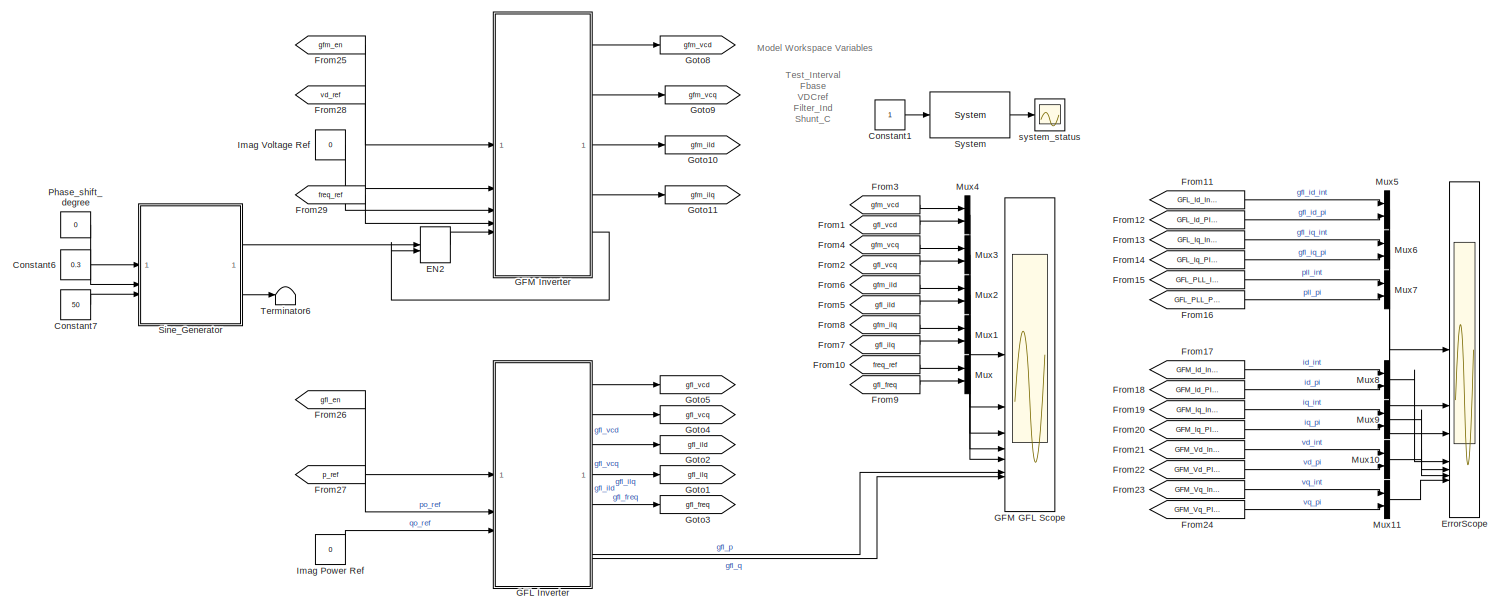
[diagram: root canvas - part 1/2, center side, full height]
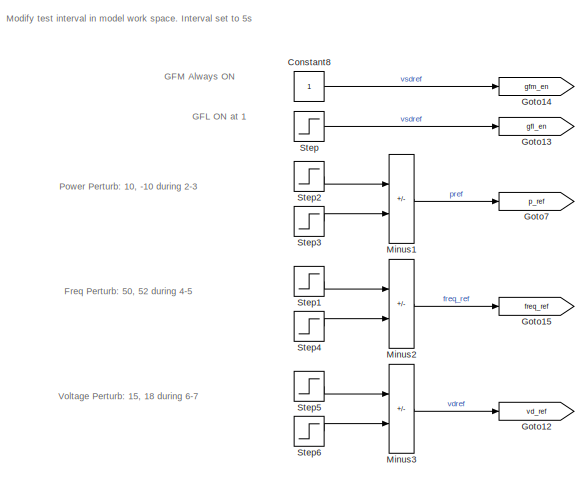
[diagram: root canvas - part 2/2, left side, full height]
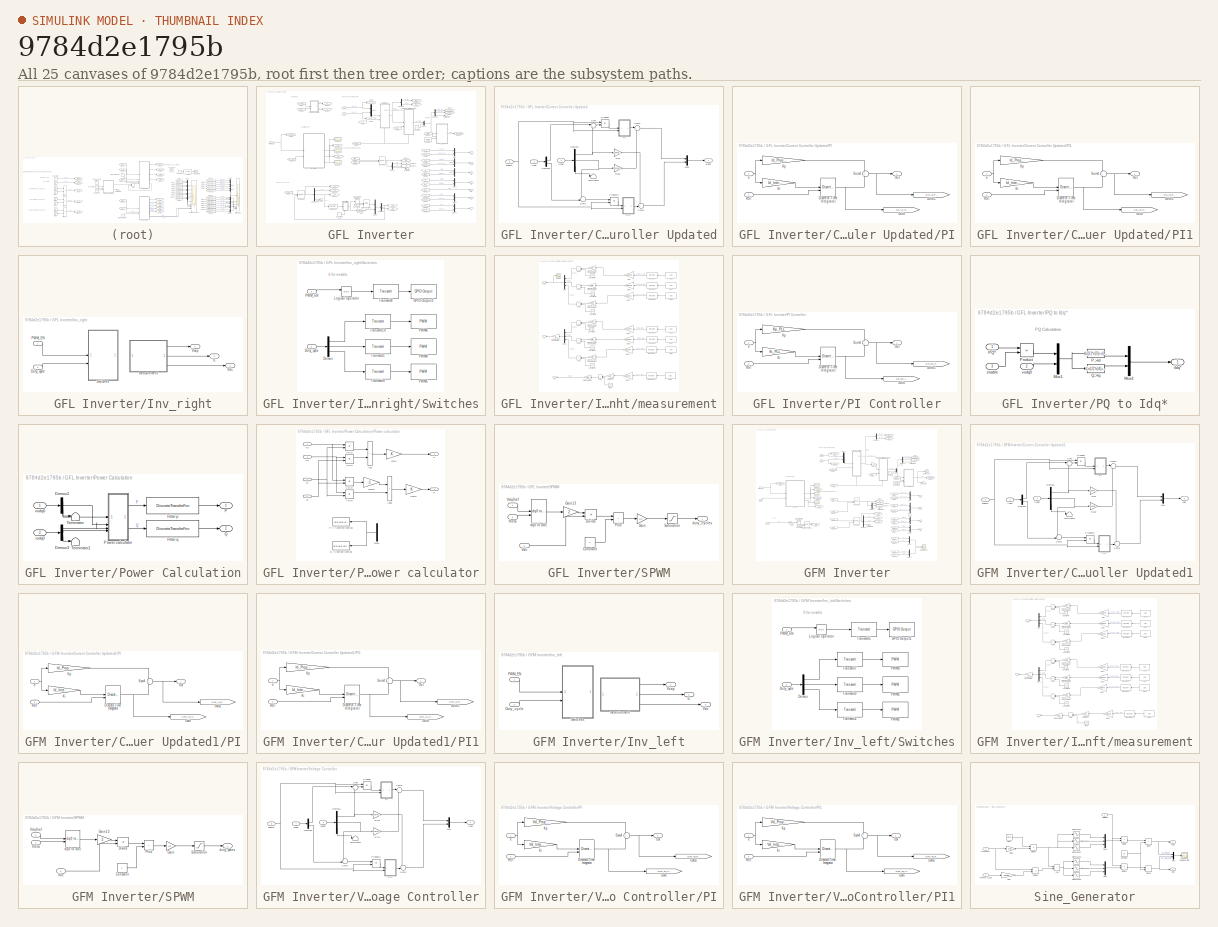
[diagram: thumbnail index - all 25 canvases of the model, root first then tree order]
MODEL slx_9784d2e1795b
KIND model
CONFIG AbsTol = auto
CONFIG EnableMultiTasking = on
CONFIG FixedStep = Ts
CONFIG InitFcn = Ts = 100e-6;
CONFIG MaxStep = auto
CONFIG MinStep = auto
CONFIG RelTol = 1e-3
CONFIG SampleTimeConstraint = Unconstrained
CONFIG SolverName = ode3
CONFIG StartTime = 0.0
CONFIG StopTime = 35
WORKSPACE source: mxarray member
WORKSPACE Fbase = 50
WORKSPACE Filter_Ind = 0.00435
WORKSPACE Shunt_C = 2.2e-06
WORKSPACE Test_Interval = 5
WORKSPACE Ts = 0.0001
WORKSPACE VDCref = 48
BLOCK [Constant] Constant1
BLOCK [Constant] Constant6
  Value = 0.3
BLOCK [Constant] Constant7
  Value = 50
BLOCK [Constant] Constant8
BLOCK [ManualSwitch] EN2
  CurrentSetting = 0
  NameLocation = left
BLOCK [Scope] ErrorScope
  Floating = off
  NumInputPorts = 8
  ScopeSpecificationString = Simulink.scopes.TimeScopeBlockCfg('CurrentConfiguration', extmgr.ConfigurationSet(extmgr.Configuration('Core','General UI',true),extmgr.Configuration('Core','Source UI',true),extmgr.Configuration('Sources','WiredSimulink',true,'DataLoggingVariableName','ScopeData1'),extmgr.Configuration('Visuals','Time Domain',true,'SerializedDisplays',{struct('MinYLimReal','16.06849','MaxYLimReal','16.46641','YLa...<+6350ch>
BLOCK [From] From1
  CloseFcn = tagdialog Close
  Commented = on
  GotoTag = gfl_vcd
  NameLocation = top
BLOCK [From] From10
  CloseFcn = tagdialog Close
  GotoTag = freq_ref
  NameLocation = top
BLOCK [From] From11
  CloseFcn = tagdialog Close
  GotoTag = GFL_Id_Int_Out
  NameLocation = top
  TagVisibility = global
BLOCK [From] From12
  CloseFcn = tagdialog Close
  GotoTag = GFL_Id_PI_Out
  NameLocation = top
  TagVisibility = global
BLOCK [From] From13
  CloseFcn = tagdialog Close
  GotoTag = GFL_Iq_Int_Out
  NameLocation = top
  TagVisibility = global
BLOCK [From] From14
  CloseFcn = tagdialog Close
  GotoTag = GFL_Iq_PI_Out
  NameLocation = top
  TagVisibility = global
BLOCK [From] From15
  CloseFcn = tagdialog Close
  GotoTag = GFL_PLL_Int_Out
  NameLocation = top
  TagVisibility = global
BLOCK [From] From16
  CloseFcn = tagdialog Close
  GotoTag = GFL_PLL_PI_Out
  NameLocation = top
  TagVisibility = global
BLOCK [From] From17
  CloseFcn = tagdialog Close
  GotoTag = GFM_Id_Int_Out
  NameLocation = top
  TagVisibility = global
BLOCK [From] From18
  CloseFcn = tagdialog Close
  GotoTag = GFM_Id_PI_Out
  NameLocation = top
  TagVisibility = global
BLOCK [From] From19
  CloseFcn = tagdialog Close
  GotoTag = GFM_Iq_Int_Out
  NameLocation = top
  TagVisibility = global
BLOCK [From] From2
  CloseFcn = tagdialog Close
  Commented = on
  GotoTag = gfl_vcq
  NameLocation = top
BLOCK [From] From20
  CloseFcn = tagdialog Close
  GotoTag = GFM_Iq_PI_Out
  NameLocation = top
  TagVisibility = global
BLOCK [From] From21
  CloseFcn = tagdialog Close
  GotoTag = GFM_Vd_Int_Out
  NameLocation = top
  TagVisibility = global
BLOCK [From] From22
  CloseFcn = tagdialog Close
  GotoTag = GFM_Vd_PI_Out
  NameLocation = top
  TagVisibility = global
BLOCK [From] From23
  CloseFcn = tagdialog Close
  GotoTag = GFM_Vq_Int_Out
  NameLocation = top
  TagVisibility = global
BLOCK [From] From24
  CloseFcn = tagdialog Close
  GotoTag = GFM_Vq_PI_Out
  NameLocation = top
  TagVisibility = global
BLOCK [From] From25
  CloseFcn = tagdialog Close
  GotoTag = gfm_en
  NameLocation = top
BLOCK [From] From26
  CloseFcn = tagdialog Close
  GotoTag = gfl_en
  NameLocation = top
BLOCK [From] From27
  CloseFcn = tagdialog Close
  GotoTag = p_ref
  NameLocation = top
BLOCK [From] From28
  CloseFcn = tagdialog Close
  GotoTag = vd_ref
  NameLocation = top
BLOCK [From] From29
  CloseFcn = tagdialog Close
  GotoTag = freq_ref
  NameLocation = top
BLOCK [From] From3
  CloseFcn = tagdialog Close
  GotoTag = gfm_vcd
  NameLocation = top
BLOCK [From] From4
  CloseFcn = tagdialog Close
  GotoTag = gfm_vcq
  NameLocation = top
BLOCK [From] From5
  CloseFcn = tagdialog Close
  GotoTag = gfl_ild
  NameLocation = top
BLOCK [From] From6
  CloseFcn = tagdialog Close
  Commented = on
  GotoTag = gfm_ild
  NameLocation = top
BLOCK [From] From7
  CloseFcn = tagdialog Close
  GotoTag = gfl_ilq
  NameLocation = top
BLOCK [From] From8
  CloseFcn = tagdialog Close
  Commented = on
  GotoTag = gfm_ilq
  NameLocation = top
BLOCK [From] From9
  CloseFcn = tagdialog Close
  GotoTag = gfl_freq
  NameLocation = top
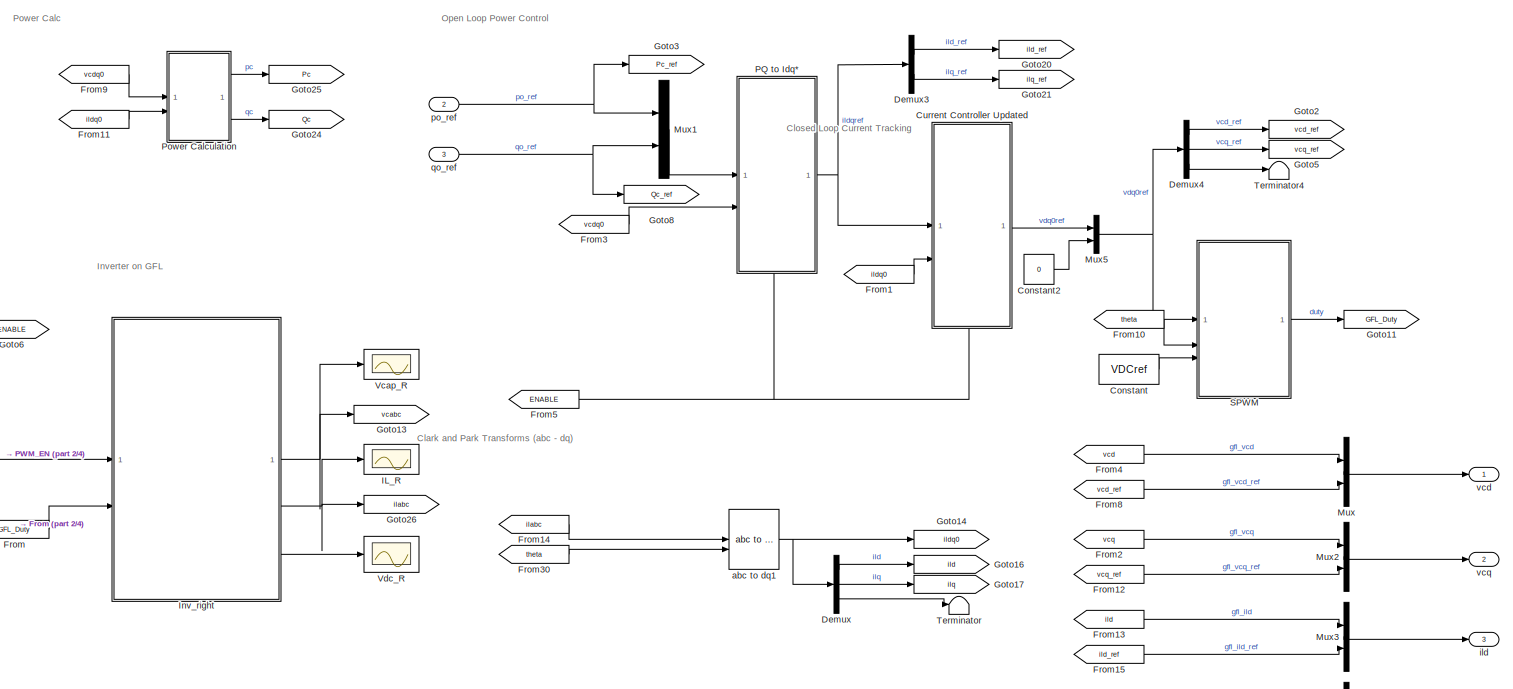
[diagram: GFL Inverter - part 1/4, full width, middle band]
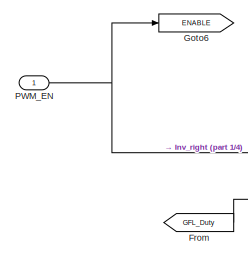
[diagram: GFL Inverter - part 2/4, middle left region]
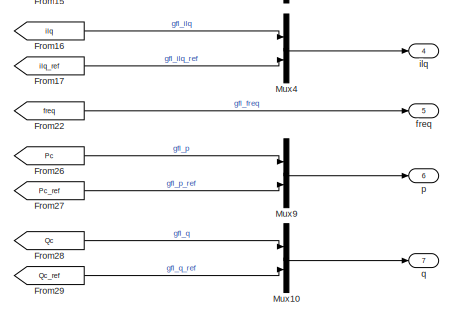
[diagram: GFL Inverter - part 3/4, bottom right region]
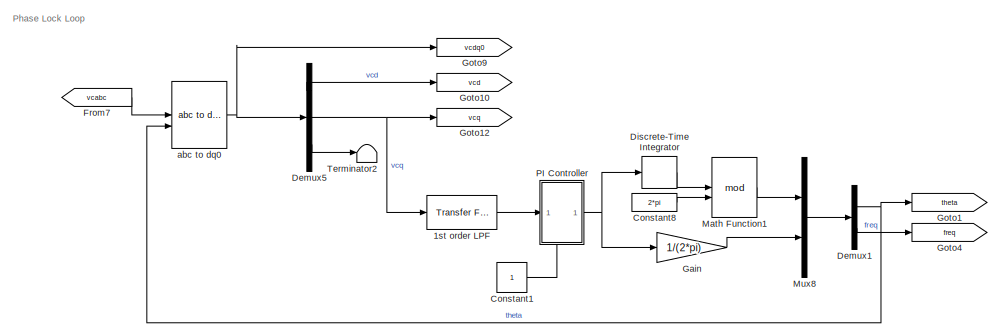
[diagram: GFL Inverter - part 4/4, bottom center region]
BLOCK [SubSystem] GFL Inverter
BLOCK [Reference] GFL Inverter/1st order LPF  REF=simulink/Discrete/Transfer Fcn
First Order
  NameLocation = top
  SourceBlock = simulink/Discrete/Transfer Fcn\nFirst Order
  SourceType = First Order Transfer Fcn
BLOCK [Constant] GFL Inverter/Constant
  Value = VDCref
BLOCK [Constant] GFL Inverter/Constant1
BLOCK [Constant] GFL Inverter/Constant2
  Value = 0
BLOCK [Constant] GFL Inverter/Constant8
  NameLocation = top
  Value = 2*pi
BLOCK [SubSystem] GFL Inverter/Current Controller Updated
  PortSchema = {"entries":[{"content":{"sides":[{"content":{"connectorIds":["In1","In2"]},"type":"ConnectorPlacement.EquallySpacedRectSide","uuid":"134caf41-c34b-48d0-a71a-522329c40d8c"},{"content":{"connectorIds":["Out1"],"side":"RIGHT"},"type":"ConnectorPlacement.EquallySpacedRectSide","uuid":"de6d8359-09d9-4cb7-8990-bc4b6d48f18d"},{"content":{"connectorIds":[],"side":"TOP"},"type":"ConnectorPlacement.EquallyS...<+395ch>  <repeated x3 — deduplicated; at blocks: Current Controller Updated, Current Controller Updated1, Voltage Controller>
BLOCK [Demux] GFL Inverter/Current Controller Updated/Demux1
  Outputs = 3
BLOCK [Demux] GFL Inverter/Current Controller Updated/Demux2
  Outputs = 2
BLOCK [Mux] GFL Inverter/Current Controller Updated/Mux
  DisplayOption = bar
  Inputs = 2
BLOCK [SubSystem] GFL Inverter/Current Controller Updated/PI
BLOCK [DiscreteIntegrator] GFL Inverter/Current Controller Updated/PI/Discrete-Time Integrator
  ExternalReset = either
  ICPrevOutput = DiscIntNeverNeededParam
  ICPrevScaledInput = DiscIntNeverNeededParam
  LimitOutput = on
  LowerSaturationLimit = -I_SatLimit
  SampleTime = Ts
  UpperSaturationLimit = I_SatLimit
  gainval = 1
BLOCK [Goto] GFL Inverter/Current Controller Updated/PI/Goto
  GotoTag = GFL_Id_Int_Out
  TagVisibility = global
BLOCK [Goto] GFL Inverter/Current Controller Updated/PI/Goto1
  GotoTag = GFL_Id_PI_Out
  TagVisibility = global
BLOCK [Gain] GFL Inverter/Current Controller Updated/PI/Ki
  Gain = Id_Integral
  OutDataTypeStr = Inherit: Same as input
  ParamDataTypeStr = Inherit: Same as input
  SaturateOnIntegerOverflow = on
BLOCK [Gain] GFL Inverter/Current Controller Updated/PI/Kp
  Gain = Id_Proportional
  OutDataTypeStr = Inherit: Same as input
  ParamDataTypeStr = Inherit: Same as input
  SaturateOnIntegerOverflow = on
BLOCK [Outport] GFL Inverter/Current Controller Updated/PI/Out
BLOCK [Inport] GFL Inverter/Current Controller Updated/PI/RST
  Port = 2
BLOCK [Sum] GFL Inverter/Current Controller Updated/PI/Sum4
  SaturateOnIntegerOverflow = on
BLOCK [Inport] GFL Inverter/Current Controller Updated/PI/e
BLOCK [SubSystem] GFL Inverter/Current Controller Updated/PI1
BLOCK [DiscreteIntegrator] GFL Inverter/Current Controller Updated/PI1/Discrete-Time Integrator
  ExternalReset = either
  ICPrevOutput = DiscIntNeverNeededParam
  ICPrevScaledInput = DiscIntNeverNeededParam
  LimitOutput = on
  LowerSaturationLimit = -I_SatLimit
  SampleTime = Ts
  UpperSaturationLimit = I_SatLimit
  gainval = 1
BLOCK [Goto] GFL Inverter/Current Controller Updated/PI1/Goto
  GotoTag = GFL_Iq_Int_Out
  TagVisibility = global
BLOCK [Goto] GFL Inverter/Current Controller Updated/PI1/Goto1
  GotoTag = GFL_Iq_PI_Out
  TagVisibility = global
BLOCK [Gain] GFL Inverter/Current Controller Updated/PI1/Ki
  Gain = Id_Integral
  OutDataTypeStr = Inherit: Same as input
  ParamDataTypeStr = Inherit: Same as input
  SaturateOnIntegerOverflow = on
BLOCK [Gain] GFL Inverter/Current Controller Updated/PI1/Kp
  Gain = Id_Proportional
  OutDataTypeStr = Inherit: Same as input
  ParamDataTypeStr = Inherit: Same as input
  SaturateOnIntegerOverflow = on
BLOCK [Outport] GFL Inverter/Current Controller Updated/PI1/Out
BLOCK [Inport] GFL Inverter/Current Controller Updated/PI1/RST
  Port = 2
BLOCK [Sum] GFL Inverter/Current Controller Updated/PI1/Sum4
  SaturateOnIntegerOverflow = on
BLOCK [Inport] GFL Inverter/Current Controller Updated/PI1/e
BLOCK [Product] GFL Inverter/Current Controller Updated/Product
  RndMeth = Zero
BLOCK [Product] GFL Inverter/Current Controller Updated/Product2
  RndMeth = Zero
BLOCK [Sum] GFL Inverter/Current Controller Updated/Sum
  Inputs = |+-
BLOCK [Sum] GFL Inverter/Current Controller Updated/Sum1
  Inputs = -+|
BLOCK [Sum] GFL Inverter/Current Controller Updated/Sum2
  Inputs = |+-
BLOCK [Sum] GFL Inverter/Current Controller Updated/Sum3
  Inputs = ++|
BLOCK [Terminator] GFL Inverter/Current Controller Updated/Terminator
BLOCK [Inport] GFL Inverter/Current Controller Updated/enable
  Port = 3
BLOCK [Inport] GFL Inverter/Current Controller Updated/ildq*
BLOCK [Inport] GFL Inverter/Current Controller Updated/ildq0
  Port = 2
BLOCK [Outport] GFL Inverter/Current Controller Updated/vtdq0
BLOCK [Gain] GFL Inverter/Current Controller Updated/wLd
  Gain = 2*pi*Fbase*Filter_Ind
BLOCK [Gain] GFL Inverter/Current Controller Updated/wLd1
  Gain = 2*pi*Fbase*Filter_Ind
BLOCK [Demux] GFL Inverter/Demux
  Outputs = 3
BLOCK [Demux] GFL Inverter/Demux1
  Outputs = 2
BLOCK [Demux] GFL Inverter/Demux3
  Outputs = 2
BLOCK [Demux] GFL Inverter/Demux4
  Outputs = 3
BLOCK [Demux] GFL Inverter/Demux5
  Outputs = 3
BLOCK [DiscreteIntegrator] GFL Inverter/Discrete-Time Integrator
  ICPrevOutput = DiscIntNeverNeededParam
  ICPrevScaledInput = DiscIntNeverNeededParam
  SampleTime = Ts
BLOCK [From] GFL Inverter/From
  GotoTag = GFL_Duty
BLOCK [From] GFL Inverter/From1
  CloseFcn = tagdialog Close
  GotoTag = ildq0
  NameLocation = top
BLOCK [From] GFL Inverter/From10
  CloseFcn = tagdialog Close
  GotoTag = theta
  NameLocation = top
BLOCK [From] GFL Inverter/From11
  CloseFcn = tagdialog Close
  GotoTag = ildq0
  NameLocation = top
BLOCK [From] GFL Inverter/From12
  CloseFcn = tagdialog Close
  GotoTag = vcq_ref
  NameLocation = top
BLOCK [From] GFL Inverter/From13
  CloseFcn = tagdialog Close
  GotoTag = ild
  NameLocation = top
BLOCK [From] GFL Inverter/From14
  CloseFcn = tagdialog Close
  GotoTag = ilabc
  NameLocation = top
BLOCK [From] GFL Inverter/From15
  CloseFcn = tagdialog Close
  GotoTag = ild_ref
  NameLocation = top
BLOCK [From] GFL Inverter/From16
  CloseFcn = tagdialog Close
  GotoTag = ilq
  NameLocation = top
BLOCK [From] GFL Inverter/From17
  CloseFcn = tagdialog Close
  GotoTag = ilq_ref
  NameLocation = top
BLOCK [From] GFL Inverter/From2
  CloseFcn = tagdialog Close
  GotoTag = vcq
  NameLocation = top
BLOCK [From] GFL Inverter/From22
  GotoTag = freq
BLOCK [From] GFL Inverter/From26
  CloseFcn = tagdialog Close
  GotoTag = Pc
  NameLocation = top
BLOCK [From] GFL Inverter/From27
  CloseFcn = tagdialog Close
  GotoTag = Pc_ref
  NameLocation = top
BLOCK [From] GFL Inverter/From28
  CloseFcn = tagdialog Close
  GotoTag = Qc
  NameLocation = top
BLOCK [From] GFL Inverter/From29
  CloseFcn = tagdialog Close
  GotoTag = Qc_ref
  NameLocation = top
BLOCK [From] GFL Inverter/From3
  CloseFcn = tagdialog Close
  GotoTag = vcdq0
  NameLocation = top
BLOCK [From] GFL Inverter/From30
  CloseFcn = tagdialog Close
  GotoTag = theta
  NameLocation = top
BLOCK [From] GFL Inverter/From4
  CloseFcn = tagdialog Close
  GotoTag = vcd
  NameLocation = top
BLOCK [From] GFL Inverter/From5
  CloseFcn = tagdialog Close
  GotoTag = ENABLE
  NameLocation = top
BLOCK [From] GFL Inverter/From7
  CloseFcn = tagdialog Close
  GotoTag = vcabc
  NameLocation = top
BLOCK [From] GFL Inverter/From8
  CloseFcn = tagdialog Close
  GotoTag = vcd_ref
  NameLocation = top
BLOCK [From] GFL Inverter/From9
  CloseFcn = tagdialog Close
  GotoTag = vcdq0
  NameLocation = top
BLOCK [Gain] GFL Inverter/Gain
  Gain = 1/(2*pi)
BLOCK [Goto] GFL Inverter/Goto1
  GotoTag = theta
BLOCK [Goto] GFL Inverter/Goto10
  GotoTag = vcd
BLOCK [Goto] GFL Inverter/Goto11
  GotoTag = GFL_Duty
BLOCK [Goto] GFL Inverter/Goto12
  GotoTag = vcq
BLOCK [Goto] GFL Inverter/Goto13
  GotoTag = vcabc
BLOCK [Goto] GFL Inverter/Goto14
  GotoTag = ildq0
BLOCK [Goto] GFL Inverter/Goto16
  GotoTag = ild
BLOCK [Goto] GFL Inverter/Goto17
  GotoTag = ilq
BLOCK [Goto] GFL Inverter/Goto2
  GotoTag = vcd_ref
BLOCK [Goto] GFL Inverter/Goto20
  GotoTag = ild_ref
BLOCK [Goto] GFL Inverter/Goto21
  GotoTag = ilq_ref
BLOCK [Goto] GFL Inverter/Goto24
  GotoTag = Qc
BLOCK [Goto] GFL Inverter/Goto25
  GotoTag = Pc
BLOCK [Goto] GFL Inverter/Goto26
  GotoTag = ilabc
BLOCK [Goto] GFL Inverter/Goto3
  GotoTag = Pc_ref
BLOCK [Goto] GFL Inverter/Goto4
  GotoTag = freq
BLOCK [Goto] GFL Inverter/Goto5
  GotoTag = vcq_ref
BLOCK [Goto] GFL Inverter/Goto6
  GotoTag = ENABLE
BLOCK [Goto] GFL Inverter/Goto8
  GotoTag = Qc_ref
BLOCK [Goto] GFL Inverter/Goto9
  GotoTag = vcdq0
BLOCK [Scope] GFL Inverter/IL_R
  Floating = off
  NumInputPorts = 1
  ScopeSpecificationString = Simulink.scopes.TimeScopeBlockCfg('CurrentConfiguration', extmgr.ConfigurationSet(extmgr.Configuration('Core','General UI',true),extmgr.Configuration('Core','Source UI',true),extmgr.Configuration('Sources','WiredSimulink',true,'DataLogging',true,'DataLoggingSaveFormat','StructureWithTime','DataLoggingVariableName','ScopeData1'),extmgr.Configuration('Visuals','Time Domain',true,'SerializedDisplays'...<+2084ch>
BLOCK [SubSystem] GFL Inverter/Inv_right
BLOCK [Inport] GFL Inverter/Inv_right/Duty_cycle
  Port = 2
BLOCK [Outport] GFL Inverter/Inv_right/IL
  Port = 2
BLOCK [Inport] GFL Inverter/Inv_right/PWM_EN
BLOCK [SubSystem] GFL Inverter/Inv_right/Switches
BLOCK [Demux] GFL Inverter/Inv_right/Switches/Demux
  Outputs = 3
BLOCK [Inport] GFL Inverter/Inv_right/Switches/Duty_cycle
  Port = 2
BLOCK [Reference] GFL Inverter/Inv_right/Switches/GPIO Output3  REF=rtpi/GPIO Output
  SourceBlock = rtpi/GPIO Output
  SourceProductName = Simplus Real-Time
  SourceType = GPIO Output
BLOCK [Logic] GFL Inverter/Inv_right/Switches/Logical Operator
  AllPortsSameDT = off
  Operator = NOT
  OutDataTypeStr = boolean
BLOCK [Reference] GFL Inverter/Inv_right/Switches/PWM4  REF=rtpi/PWM
  SourceBlock = rtpi/PWM
  SourceProductName = Simplus Real-Time
  SourceType = Pulse-Width Modulator
BLOCK [Reference] GFL Inverter/Inv_right/Switches/PWM5  REF=rtpi/PWM
  SourceBlock = rtpi/PWM
  SourceProductName = Simplus Real-Time
  SourceType = Pulse-Width Modulator
BLOCK [Reference] GFL Inverter/Inv_right/Switches/PWM6  REF=rtpi/PWM
  SourceBlock = rtpi/PWM
  SourceProductName = Simplus Real-Time
  SourceType = Pulse-Width Modulator
BLOCK [Inport] GFL Inverter/Inv_right/Switches/PWM_EN
BLOCK [Reference] GFL Inverter/Inv_right/Switches/Transmit1  REF=rtpi/Transmit
  Priority = 10
  SourceBlock = rtpi/Transmit
  SourceProductName = Simplus Real-Time
  SourceType = Interface: Transmit
BLOCK [Reference] GFL Inverter/Inv_right/Switches/Transmit10  REF=rtpi/Transmit
  Priority = 10
  SourceBlock = rtpi/Transmit
  SourceProductName = Simplus Real-Time
  SourceType = Interface: Transmit
BLOCK [Reference] GFL Inverter/Inv_right/Switches/Transmit8  REF=rtpi/Transmit
  SourceBlock = rtpi/Transmit
  SourceProductName = Simplus Real-Time
  SourceType = Interface: Transmit
BLOCK [Reference] GFL Inverter/Inv_right/Switches/Transmit9  REF=rtpi/Transmit
  Priority = 10
  SourceBlock = rtpi/Transmit
  SourceProductName = Simplus Real-Time
  SourceType = Interface: Transmit
BLOCK [Outport] GFL Inverter/Inv_right/Vcap
BLOCK [Outport] GFL Inverter/Inv_right/Vdc
  Port = 3
BLOCK [SubSystem] GFL Inverter/Inv_right/measurement
BLOCK [Reference] GFL Inverter/Inv_right/measurement/ADC1  REF=rtpi/ADC
  SourceBlock = rtpi/ADC
  SourceProductName = Simplus Real-Time
  SourceType = Analog-Digital Converter
BLOCK [Reference] GFL Inverter/Inv_right/measurement/ADC2  REF=rtpi/ADC
  SourceBlock = rtpi/ADC
  SourceProductName = Simplus Real-Time
  SourceType = Analog-Digital Converter
BLOCK [Reference] GFL Inverter/Inv_right/measurement/ADC3  REF=rtpi/ADC
  SourceBlock = rtpi/ADC
  SourceProductName = Simplus Real-Time
  SourceType = Analog-Digital Converter
BLOCK [Reference] GFL Inverter/Inv_right/measurement/ADC4  REF=rtpi/ADC
  SourceBlock = rtpi/ADC
  SourceProductName = Simplus Real-Time
  SourceType = Analog-Digital Converter
BLOCK [Reference] GFL Inverter/Inv_right/measurement/ADC5  REF=rtpi/ADC
  SourceBlock = rtpi/ADC
  SourceProductName = Simplus Real-Time
  SourceType = Analog-Digital Converter
BLOCK [Reference] GFL Inverter/Inv_right/measurement/ADC6  REF=rtpi/ADC
  SourceBlock = rtpi/ADC
  SourceProductName = Simplus Real-Time
  SourceType = Analog-Digital Converter
BLOCK [Reference] GFL Inverter/Inv_right/measurement/ADC7  REF=rtpi/ADC
  SourceBlock = rtpi/ADC
  SourceProductName = Simplus Real-Time
  SourceType = Analog-Digital Converter
BLOCK [Sum] GFL Inverter/Inv_right/measurement/Add
  IconShape = rectangular
  NameLocation = top
BLOCK [Sum] GFL Inverter/Inv_right/measurement/Add1
  IconShape = rectangular
  NameLocation = top
BLOCK [Sum] GFL Inverter/Inv_right/measurement/Add2
  IconShape = rectangular
  NameLocation = top
BLOCK [Sum] GFL Inverter/Inv_right/measurement/Add3
  IconShape = rectangular
  NameLocation = top
BLOCK [Sum] GFL Inverter/Inv_right/measurement/Add4
  IconShape = rectangular
  NameLocation = top
BLOCK [Sum] GFL Inverter/Inv_right/measurement/Add5
  IconShape = rectangular
  NameLocation = top
BLOCK [Sum] GFL Inverter/Inv_right/measurement/Add6
  IconShape = rectangular
  NameLocation = top
BLOCK [Gain] GFL Inverter/Inv_right/measurement/Amp x INA240 x Sense Gain 1
  Gain = 10/9
  NameLocation = top
BLOCK [Gain] GFL Inverter/Inv_right/measurement/Amp x INA240 x Sense Gain 2
  Gain = 10/9
  NameLocation = top
BLOCK [Gain] GFL Inverter/Inv_right/measurement/Amp x INA240 x Sense Gain 3
  Gain = 10/9
  NameLocation = top
BLOCK [Gain] GFL Inverter/Inv_right/measurement/Amp x INA240 x Sense Gain 4
  Gain = 40/7
  NameLocation = top
BLOCK [Gain] GFL Inverter/Inv_right/measurement/Amp x INA240 x Sense Gain 5
  Gain = 40/7
  NameLocation = top
BLOCK [Gain] GFL Inverter/Inv_right/measurement/Amp x INA240 x Sense Gain 6
  Gain = 39.6/7
  NameLocation = top
BLOCK [Gain] GFL Inverter/Inv_right/measurement/Amplifier Gain
  Gain = 1/9
  NameLocation = top
BLOCK [Gain] GFL Inverter/Inv_right/measurement/Gain
  Gain = 15/2048
  NameLocation = top
BLOCK [Gain] GFL Inverter/Inv_right/measurement/Gain1
  Gain = 15/2048
  NameLocation = top
BLOCK [Gain] GFL Inverter/Inv_right/measurement/Gain2
  Gain = 15/2048
  NameLocation = top
BLOCK [Gain] GFL Inverter/Inv_right/measurement/Gain3
  Gain = 15/2048
  NameLocation = top
BLOCK [Gain] GFL Inverter/Inv_right/measurement/Gain4
  Gain = 15/2048
  NameLocation = top
BLOCK [Gain] GFL Inverter/Inv_right/measurement/Gain5
  Gain = 15/2048
  NameLocation = top
BLOCK [Gain] GFL Inverter/Inv_right/measurement/Gain6
  Gain = 15/2048
  NameLocation = top
BLOCK [Constant] GFL Inverter/Inv_right/measurement/I Abs Offset 1
  NameLocation = top
  Value = 0.295
BLOCK [Constant] GFL Inverter/Inv_right/measurement/I Abs Offset 2
  NameLocation = top
  Value = 0.182
BLOCK [Constant] GFL Inverter/Inv_right/measurement/I Abs Offset 3
  NameLocation = top
  Value = 0.223
BLOCK [Constant] GFL Inverter/Inv_right/measurement/I Abs Offset 4
  NameLocation = top
  Value = 1.089
BLOCK [Constant] GFL Inverter/Inv_right/measurement/I Abs Offset 5
  NameLocation = top
  Value = 0.923
BLOCK [Constant] GFL Inverter/Inv_right/measurement/I Abs Offset 6
  NameLocation = top
  Value = 0.831
BLOCK [Outport] GFL Inverter/Inv_right/measurement/IL
  Port = 2
BLOCK [Gain] GFL Inverter/Inv_right/measurement/Load to Gen Convention
  Gain = -1
  NameLocation = top
BLOCK [Mux] GFL Inverter/Inv_right/measurement/Mux
  DisplayOption = bar
  Inputs = 3
  NameLocation = top
BLOCK [Mux] GFL Inverter/Inv_right/measurement/Mux1
  DisplayOption = bar
  Inputs = 3
  NameLocation = top
BLOCK [Constant] GFL Inverter/Inv_right/measurement/Offset
  NameLocation = top
  Value = 1.65
BLOCK [Reference] GFL Inverter/Inv_right/measurement/Receive1  REF=rtpi/Receive
  Priority = 12
  SourceBlock = rtpi/Receive
  SourceProductName = Simplus Real-Time
  SourceType = Interface: Receive
BLOCK [Reference] GFL Inverter/Inv_right/measurement/Receive14  REF=rtpi/Receive
  Priority = 12
  SourceBlock = rtpi/Receive
  SourceProductName = Simplus Real-Time
  SourceType = Interface: Receive
BLOCK [Reference] GFL Inverter/Inv_right/measurement/Receive2  REF=rtpi/Receive
  Priority = 12
  SourceBlock = rtpi/Receive
  SourceProductName = Simplus Real-Time
  SourceType = Interface: Receive
BLOCK [Reference] GFL Inverter/Inv_right/measurement/Receive3  REF=rtpi/Receive
  Priority = 12
  SourceBlock = rtpi/Receive
  SourceProductName = Simplus Real-Time
  SourceType = Interface: Receive
BLOCK [Reference] GFL Inverter/Inv_right/measurement/Receive4  REF=rtpi/Receive
  Priority = 12
  SourceBlock = rtpi/Receive
  SourceProductName = Simplus Real-Time
  SourceType = Interface: Receive
BLOCK [Reference] GFL Inverter/Inv_right/measurement/Receive5  REF=rtpi/Receive
  Priority = 12
  SourceBlock = rtpi/Receive
  SourceProductName = Simplus Real-Time
  SourceType = Interface: Receive
BLOCK [Reference] GFL Inverter/Inv_right/measurement/Receive6  REF=rtpi/Receive
  Priority = 12
  SourceBlock = rtpi/Receive
  SourceProductName = Simplus Real-Time
  SourceType = Interface: Receive
BLOCK [Outport] GFL Inverter/Inv_right/measurement/Vcap
BLOCK [Outport] GFL Inverter/Inv_right/measurement/Vdc
  Port = 3
BLOCK [Gain] GFL Inverter/Inv_right/measurement/Voltage Divider
  Gain = 28.06
  NameLocation = top
BLOCK [Scope] GFL Inverter/Inv_right/measurement/vcabc
  Floating = off
  NumInputPorts = 1
  ScopeSpecificationString = Simulink.scopes.TimeScopeBlockCfg('CurrentConfiguration', extmgr.ConfigurationSet(extmgr.Configuration('Core','General UI',true),extmgr.Configuration('Core','Source UI',true),extmgr.Configuration('Sources','WiredSimulink',true,'DataLoggingVariableName','ScopeData1'),extmgr.Configuration('Visuals','Time Domain',true,'SerializedDisplays',{struct('MinYLimReal','-27.07504','MaxYLimReal','27.17649','YL...<+1865ch>
BLOCK [Math] GFL Inverter/Math Function1
  Operator = mod
  SignedPower = on
BLOCK [Mux] GFL Inverter/Mux
  DisplayOption = bar
  Inputs = 2
BLOCK [Mux] GFL Inverter/Mux1
  DisplayOption = bar
  Inputs = 2
BLOCK [Mux] GFL Inverter/Mux10
  DisplayOption = bar
  Inputs = 2
BLOCK [Mux] GFL Inverter/Mux2
  DisplayOption = bar
  Inputs = 2
BLOCK [Mux] GFL Inverter/Mux3
  DisplayOption = bar
  Inputs = 2
BLOCK [Mux] GFL Inverter/Mux4
  DisplayOption = bar
  Inputs = 2
BLOCK [Mux] GFL Inverter/Mux5
  DisplayOption = bar
  Inputs = 2
BLOCK [Mux] GFL Inverter/Mux8
  DisplayOption = bar
  Inputs = 2
BLOCK [Mux] GFL Inverter/Mux9
  DisplayOption = bar
  Inputs = 2
BLOCK [SubSystem] GFL Inverter/PI Controller
  NameLocation = top
  PortSchema = {"entries":[{"content":{"sides":[{"content":{"connectorIds":["In1"]},"type":"ConnectorPlacement.EquallySpacedRectSide","uuid":"de74edf3-48e0-492f-8bd8-cb8fa34f4920"},{"content":{"connectorIds":["Out1"],"side":"RIGHT"},"type":"ConnectorPlacement.EquallySpacedRectSide","uuid":"732ba37e-c2f5-4a41-96c7-cf5d66f1810a"},{"content":{"connectorIds":[],"side":"TOP"},"type":"ConnectorPlacement.EquallySpacedR...<+389ch>
BLOCK [DiscreteIntegrator] GFL Inverter/PI Controller/Discrete-Time Integrator
  ExternalReset = either
  ICPrevOutput = DiscIntNeverNeededParam
  ICPrevScaledInput = DiscIntNeverNeededParam
  InitialCondition = 2*pi*Fbase
  LimitOutput = on
  LowerSaturationLimit = 2*pi*Fbase - IntSat_PLL
  SampleTime = Ts
  UpperSaturationLimit = 2*pi*Fbase + IntSat_PLL
  gainval = 1
BLOCK [Goto] GFL Inverter/PI Controller/Goto
  GotoTag = GFL_PLL_Int_Out
  TagVisibility = global
BLOCK [Goto] GFL Inverter/PI Controller/Goto1
  GotoTag = GFL_PLL_PI_Out
  TagVisibility = global
BLOCK [Gain] GFL Inverter/PI Controller/Ki
  Gain = Ki_PLL
  OutDataTypeStr = Inherit: Same as input
  ParamDataTypeStr = Inherit: Same as input
  SaturateOnIntegerOverflow = on
BLOCK [Gain] GFL Inverter/PI Controller/Kp
  Gain = Kp_PLL
  OutDataTypeStr = Inherit: Same as input
  ParamDataTypeStr = Inherit: Same as input
  SaturateOnIntegerOverflow = on
BLOCK [Outport] GFL Inverter/PI Controller/Out
BLOCK [Inport] GFL Inverter/PI Controller/RST
  Port = 2
BLOCK [Sum] GFL Inverter/PI Controller/Sum4
  SaturateOnIntegerOverflow = on
BLOCK [Inport] GFL Inverter/PI Controller/e
BLOCK [SubSystem] GFL Inverter/PQ to Idq*
  PortSchema = {"entries":[{"content":{"sides":[{"content":{"connectorIds":["In1","In2"]},"type":"ConnectorPlacement.EquallySpacedRectSide","uuid":"5271b3ed-46a4-4113-9b69-458d23b85fa2"},{"content":{"connectorIds":["Out1"],"side":"RIGHT"},"type":"ConnectorPlacement.EquallySpacedRectSide","uuid":"00fb532b-4b50-4607-a5c4-cd74a5a5fc42"},{"content":{"connectorIds":[],"side":"TOP"},"type":"ConnectorPlacement.EquallyS...<+395ch>
BLOCK [Mux] GFL Inverter/PQ to Idq*/Mux1
  DisplayOption = bar
  Inputs = 2
BLOCK [Mux] GFL Inverter/PQ to Idq*/Mux4
  DisplayOption = bar
  Inputs = 2
BLOCK [Fcn] GFL Inverter/PQ to Idq*/P->Id
  Expr = (u[1]*u[3]+u[2]*u[4])/(u[3]*u[3]+u[4]*u[4])
BLOCK [Inport] GFL Inverter/PQ to Idq*/PQ*
BLOCK [Product] GFL Inverter/PQ to Idq*/Product
  RndMeth = Zero
BLOCK [Fcn] GFL Inverter/PQ to Idq*/Q->Iq
  Expr = -(-u[1]*u[4]+u[2]*u[3])/(u[3]*u[3]+u[4]*u[4])
BLOCK [Inport] GFL Inverter/PQ to Idq*/enable
  Port = 3
BLOCK [Outport] GFL Inverter/PQ to Idq*/iIdq*
BLOCK [Inport] GFL Inverter/PQ to Idq*/vodq0
  Port = 2
BLOCK [Inport] GFL Inverter/PWM_EN
BLOCK [SubSystem] GFL Inverter/Power Calculation
BLOCK [Demux] GFL Inverter/Power Calculation/Demux2
  Outputs = 3
BLOCK [Demux] GFL Inverter/Power Calculation/Demux3
  Outputs = 3
BLOCK [DiscreteTransferFcn] GFL Inverter/Power Calculation/Filter p
  Denominator = [1 ((250*2*pi*Ts)-1)]
  InputPortMap = u0
  Numerator = 250*2*pi*Ts
  SampleTime = Ts
BLOCK [DiscreteTransferFcn] GFL Inverter/Power Calculation/Filter q
  Denominator = [1 ((250*2*pi*Ts)-1)]
  InputPortMap = u0
  Numerator = 250*2*pi*Ts
  SampleTime = Ts
BLOCK [Outport] GFL Inverter/Power Calculation/P
BLOCK [SubSystem] GFL Inverter/Power Calculation/Power calculator
BLOCK [Sum] GFL Inverter/Power Calculation/Power calculator/Add
  IconShape = rectangular
BLOCK [Sum] GFL Inverter/Power Calculation/Power calculator/Add1
  IconShape = rectangular
BLOCK [Gain] GFL Inverter/Power Calculation/Power calculator/Gain
BLOCK [Gain] GFL Inverter/Power Calculation/Power calculator/Gain1
BLOCK [Gain] GFL Inverter/Power Calculation/Power calculator/Gain2
  Gain = -1
BLOCK [Inport] GFL Inverter/Power Calculation/Power calculator/Id
  NameLocation = top
  Port = 3
BLOCK [Inport] GFL Inverter/Power Calculation/Power calculator/Iq
  NameLocation = top
  Port = 4
BLOCK [Mux] GFL Inverter/Power Calculation/Power calculator/Mux1
  Commented = on
  DisplayOption = bar
  NameLocation = top
BLOCK [Fcn] GFL Inverter/Power Calculation/Power calculator/P = -Vod*Iod-Voq*Ioq
  Commented = on
  Expr = -u[1]*u[3]-u[2]*u[4]
  NameLocation = top
BLOCK [Fcn] GFL Inverter/Power Calculation/Power calculator/Q = Vod*Ioq-Voq*Iod
  Commented = on
  Expr = u[1]*u[4]-u[2]*u[3]
  NameLocation = top
BLOCK [Inport] GFL Inverter/Power Calculation/Power calculator/Vd
  NameLocation = top
BLOCK [Product] GFL Inverter/Power Calculation/Power calculator/Vd Id
BLOCK [Product] GFL Inverter/Power Calculation/Power calculator/Vd Iq
BLOCK [Inport] GFL Inverter/Power Calculation/Power calculator/Vq
  NameLocation = top
  Port = 2
BLOCK [Product] GFL Inverter/Power Calculation/Power calculator/Vq Id
BLOCK [Product] GFL Inverter/Power Calculation/Power calculator/Vq Iq
BLOCK [Outport] GFL Inverter/Power Calculation/Power calculator/p
  NameLocation = top
BLOCK [Outport] GFL Inverter/Power Calculation/Power calculator/q
  NameLocation = top
  Port = 2
BLOCK [Outport] GFL Inverter/Power Calculation/Q
  Port = 2
BLOCK [Terminator] GFL Inverter/Power Calculation/Terminator
BLOCK [Terminator] GFL Inverter/Power Calculation/Terminator1
BLOCK [Inport] GFL Inverter/Power Calculation/iodq0
  Port = 2
BLOCK [Inport] GFL Inverter/Power Calculation/vodq0
BLOCK [SubSystem] GFL Inverter/SPWM
BLOCK [Constant] GFL Inverter/SPWM/Constant
BLOCK [Product] GFL Inverter/SPWM/Divide
  Inputs = */
BLOCK [Gain] GFL Inverter/SPWM/Gain
  Gain = 1/2
BLOCK [Gain] GFL Inverter/SPWM/Gain13
  Gain = 2
BLOCK [Sum] GFL Inverter/SPWM/Plus
  IconShape = rectangular
BLOCK [Saturate] GFL Inverter/SPWM/Saturation
  LowerLimit = 0.1
  UpperLimit = 0.9
BLOCK [Inport] GFL Inverter/SPWM/Vdc
  Port = 3
BLOCK [Inport] GFL Inverter/SPWM/Vdq0ref
BLOCK [Reference] GFL Inverter/SPWM/dq0 to abc  REF=spsdq0toabcLib/dq0 to abc
  LibrarySourceBlock = sps_lib/Control/dq0 to abc
  SourceBlock = spsdq0toabcLib/dq0 to abc
  SourceType = dq0 to abc Transformation
BLOCK [Outport] GFL Inverter/SPWM/duty_cycles
BLOCK [Inport] GFL Inverter/SPWM/theta
  Port = 2
BLOCK [Terminator] GFL Inverter/Terminator
BLOCK [Terminator] GFL Inverter/Terminator2
BLOCK [Terminator] GFL Inverter/Terminator4
BLOCK [Scope] GFL Inverter/Vcap_R
  Floating = off
  NumInputPorts = 1
  ScopeSpecificationString = Simulink.scopes.TimeScopeBlockCfg('CurrentConfiguration', extmgr.ConfigurationSet(extmgr.Configuration('Core','General UI',true),extmgr.Configuration('Core','Source UI',true),extmgr.Configuration('Sources','WiredSimulink',true,'DataLoggingSaveFormat','StructureWithTime','DataLoggingVariableName','ScopeData2','DataLoggingLimitDataPoints',true,'DataLoggingMaxPoints','10000'),extmgr.Configuration('Vi...<+2137ch>
BLOCK [Scope] GFL Inverter/Vdc_R
  Floating = off
  NumInputPorts = 1
  ScopeSpecificationString = Simulink.scopes.TimeScopeBlockCfg('CurrentConfiguration', extmgr.ConfigurationSet(extmgr.Configuration('Core','General UI',true),extmgr.Configuration('Core','Source UI',true),extmgr.Configuration('Sources','WiredSimulink',true,'DataLogging',true,'DataLoggingSaveFormat','StructureWithTime','DataLoggingVariableName','ScopeData3'),extmgr.Configuration('Visuals','Time Domain',true,'SerializedDisplays'...<+1995ch>
BLOCK [Reference] GFL Inverter/abc to dq0  REF=spsabctodq0Lib/abc to dq0
  LibrarySourceBlock = sps_lib/Control/abc to dq0
  SourceBlock = spsabctodq0Lib/abc to dq0
  SourceType = abc to dq0 Transformation
BLOCK [Reference] GFL Inverter/abc to dq1  REF=spsabctodq0Lib/abc to dq0
  LibrarySourceBlock = sps_lib/Control/abc to dq0
  SourceBlock = spsabctodq0Lib/abc to dq0
  SourceType = abc to dq0 Transformation
BLOCK [Outport] GFL Inverter/freq
  Port = 5
BLOCK [Outport] GFL Inverter/ild
  Port = 3
BLOCK [Outport] GFL Inverter/ilq
  Port = 4
BLOCK [Outport] GFL Inverter/p
  Port = 6
BLOCK [Inport] GFL Inverter/po_ref
  Port = 2
BLOCK [Outport] GFL Inverter/q
  Port = 7
BLOCK [Inport] GFL Inverter/qo_ref
  Port = 3
BLOCK [Outport] GFL Inverter/vcd
BLOCK [Outport] GFL Inverter/vcq
  Port = 2
BLOCK [Scope] GFM GFL Scope
  ExtModeUploadOption = log
  Floating = off
  NumInputPorts = 8
  ScopeSpecificationString = Simulink.scopes.TimeScopeBlockCfg('CurrentConfiguration', extmgr.ConfigurationSet(extmgr.Configuration('Core','General UI',true,'FigureColor',[1 1 1],'DisplayFullSourceName',true),extmgr.Configuration('Core','Source UI',true),extmgr.Configuration('Sources','WiredSimulink',true,'DataLoggingSaveFormat','StructureWithTime','DataLoggingVariableName','DualData','DataLoggingMaxPoints','20000','DataLoggi...<+7968ch>
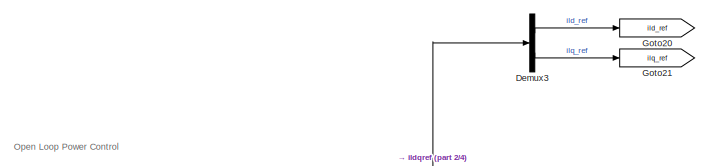
[diagram: GFM Inverter - part 1/4, top center region]
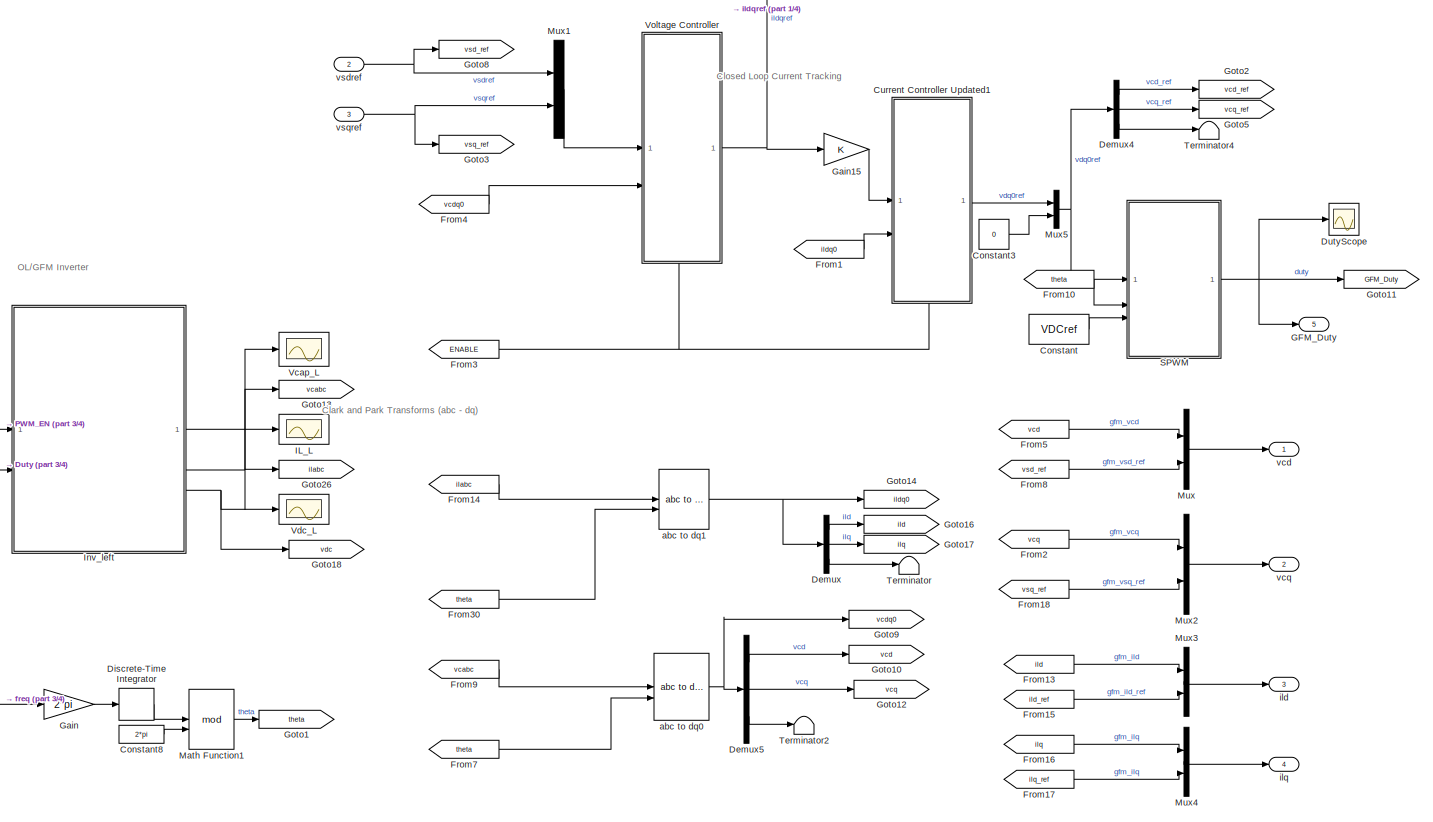
[diagram: GFM Inverter - part 2/4, full width, middle band]
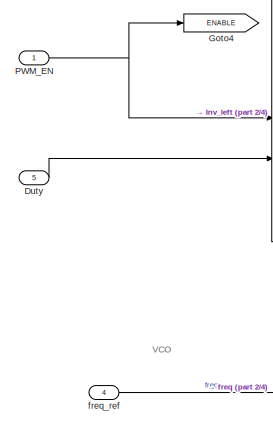
[diagram: GFM Inverter - part 3/4, middle left region]
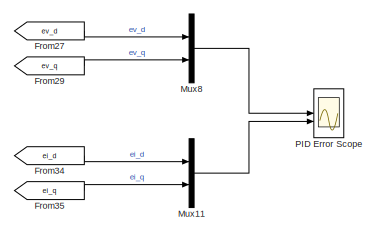
[diagram: GFM Inverter - part 4/4, bottom right region]
BLOCK [SubSystem] GFM Inverter
BLOCK [Constant] GFM Inverter/Constant
  Value = VDCref
BLOCK [Constant] GFM Inverter/Constant3
  Value = 0
BLOCK [Constant] GFM Inverter/Constant8
  NameLocation = top
  Value = 2*pi
BLOCK [SubSystem] GFM Inverter/Current Controller Updated1
BLOCK [Demux] GFM Inverter/Current Controller Updated1/Demux1
  Outputs = 3
BLOCK [Demux] GFM Inverter/Current Controller Updated1/Demux2
  Outputs = 2
BLOCK [Mux] GFM Inverter/Current Controller Updated1/Mux
  DisplayOption = bar
  Inputs = 2
BLOCK [SubSystem] GFM Inverter/Current Controller Updated1/PI
BLOCK [DiscreteIntegrator] GFM Inverter/Current Controller Updated1/PI/Discrete-Time Integrator
  ExternalReset = either
  ICPrevOutput = DiscIntNeverNeededParam
  ICPrevScaledInput = DiscIntNeverNeededParam
  LimitOutput = on
  LowerSaturationLimit = -I_IntSat
  SampleTime = Ts
  UpperSaturationLimit = I_IntSat
  gainval = 1
BLOCK [Goto] GFM Inverter/Current Controller Updated1/PI/Goto
  GotoTag = GFM_Id_Int_Out
  TagVisibility = global
BLOCK [Goto] GFM Inverter/Current Controller Updated1/PI/Goto1
  GotoTag = GFM_Id_PI_Out
  TagVisibility = global
BLOCK [Gain] GFM Inverter/Current Controller Updated1/PI/Ki
  Gain = Id_Integral
  OutDataTypeStr = Inherit: Same as input
  ParamDataTypeStr = Inherit: Same as input
  SaturateOnIntegerOverflow = on
BLOCK [Gain] GFM Inverter/Current Controller Updated1/PI/Kp
  Gain = Id_Proportional
  OutDataTypeStr = Inherit: Same as input
  ParamDataTypeStr = Inherit: Same as input
  SaturateOnIntegerOverflow = on
BLOCK [Outport] GFM Inverter/Current Controller Updated1/PI/Out
BLOCK [Inport] GFM Inverter/Current Controller Updated1/PI/RST
  Port = 2
BLOCK [Sum] GFM Inverter/Current Controller Updated1/PI/Sum4
  SaturateOnIntegerOverflow = on
BLOCK [Inport] GFM Inverter/Current Controller Updated1/PI/e
BLOCK [SubSystem] GFM Inverter/Current Controller Updated1/PI1
BLOCK [DiscreteIntegrator] GFM Inverter/Current Controller Updated1/PI1/Discrete-Time Integrator
  ExternalReset = either
  ICPrevOutput = DiscIntNeverNeededParam
  ICPrevScaledInput = DiscIntNeverNeededParam
  LimitOutput = on
  LowerSaturationLimit = -I_IntSat
  SampleTime = Ts
  UpperSaturationLimit = I_IntSat
  gainval = 1
BLOCK [Goto] GFM Inverter/Current Controller Updated1/PI1/Goto
  GotoTag = GFM_Iq_Int_Out
  TagVisibility = global
BLOCK [Goto] GFM Inverter/Current Controller Updated1/PI1/Goto1
  GotoTag = GFM_Iq_PI_Out
  TagVisibility = global
BLOCK [Gain] GFM Inverter/Current Controller Updated1/PI1/Ki
  Gain = Id_Integral
  OutDataTypeStr = Inherit: Same as input
  ParamDataTypeStr = Inherit: Same as input
  SaturateOnIntegerOverflow = on
BLOCK [Gain] GFM Inverter/Current Controller Updated1/PI1/Kp
  Gain = Id_Proportional
  OutDataTypeStr = Inherit: Same as input
  ParamDataTypeStr = Inherit: Same as input
  SaturateOnIntegerOverflow = on
BLOCK [Outport] GFM Inverter/Current Controller Updated1/PI1/Out
BLOCK [Inport] GFM Inverter/Current Controller Updated1/PI1/RST
  Port = 2
BLOCK [Sum] GFM Inverter/Current Controller Updated1/PI1/Sum4
  SaturateOnIntegerOverflow = on
BLOCK [Inport] GFM Inverter/Current Controller Updated1/PI1/e
BLOCK [Product] GFM Inverter/Current Controller Updated1/Product
  RndMeth = Zero
BLOCK [Product] GFM Inverter/Current Controller Updated1/Product2
  RndMeth = Zero
BLOCK [Sum] GFM Inverter/Current Controller Updated1/Sum
  Inputs = |+-
BLOCK [Sum] GFM Inverter/Current Controller Updated1/Sum1
  Inputs = -+|
BLOCK [Sum] GFM Inverter/Current Controller Updated1/Sum2
  Inputs = |+-
BLOCK [Sum] GFM Inverter/Current Controller Updated1/Sum3
  Inputs = ++|
BLOCK [Terminator] GFM Inverter/Current Controller Updated1/Terminator
BLOCK [Inport] GFM Inverter/Current Controller Updated1/enable
  Port = 3
BLOCK [Inport] GFM Inverter/Current Controller Updated1/ildq*
BLOCK [Inport] GFM Inverter/Current Controller Updated1/ildq0
  Port = 2
BLOCK [Outport] GFM Inverter/Current Controller Updated1/vdq
BLOCK [Gain] GFM Inverter/Current Controller Updated1/wLd
  Gain = 2*pi*Fbase*Filter_Ind
BLOCK [Gain] GFM Inverter/Current Controller Updated1/wLd1
  Gain = 2*pi*Fbase*Filter_Ind
BLOCK [Demux] GFM Inverter/Demux
  Outputs = 3
BLOCK [Demux] GFM Inverter/Demux3
  Outputs = 2
BLOCK [Demux] GFM Inverter/Demux4
  Outputs = 3
BLOCK [Demux] GFM Inverter/Demux5
  Outputs = 3
BLOCK [DiscreteIntegrator] GFM Inverter/Discrete-Time Integrator
  ICPrevOutput = DiscIntNeverNeededParam
  ICPrevScaledInput = DiscIntNeverNeededParam
  SampleTime = Ts
BLOCK [Inport] GFM Inverter/Duty
  Port = 5
BLOCK [Scope] GFM Inverter/DutyScope
  Commented = on
  Floating = off
  NumInputPorts = 1
  ScopeSpecificationString = Simulink.scopes.TimeScopeBlockCfg('CurrentConfiguration', extmgr.ConfigurationSet(extmgr.Configuration('Core','General UI',true),extmgr.Configuration('Core','Source UI',true),extmgr.Configuration('Sources','WiredSimulink',true,'DataLoggingVariableName','ScopeData1'),extmgr.Configuration('Visuals','Time Domain',true,'SerializedDisplays',{struct('MinYLimReal','0.00000','MaxYLimReal','1.00000','YLabe...<+1432ch>
BLOCK [From] GFM Inverter/From1
  CloseFcn = tagdialog Close
  GotoTag = ildq0
  NameLocation = top
BLOCK [From] GFM Inverter/From10
  CloseFcn = tagdialog Close
  GotoTag = theta
  NameLocation = top
BLOCK [From] GFM Inverter/From13
  CloseFcn = tagdialog Close
  GotoTag = ild
  NameLocation = top
BLOCK [From] GFM Inverter/From14
  CloseFcn = tagdialog Close
  GotoTag = ilabc
  NameLocation = top
BLOCK [From] GFM Inverter/From15
  CloseFcn = tagdialog Close
  GotoTag = ild_ref
  NameLocation = top
BLOCK [From] GFM Inverter/From16
  CloseFcn = tagdialog Close
  GotoTag = ilq
  NameLocation = top
BLOCK [From] GFM Inverter/From17
  CloseFcn = tagdialog Close
  GotoTag = ilq_ref
  NameLocation = top
BLOCK [From] GFM Inverter/From18
  CloseFcn = tagdialog Close
  GotoTag = vsq_ref
  NameLocation = top
BLOCK [From] GFM Inverter/From2
  CloseFcn = tagdialog Close
  GotoTag = vcq
  NameLocation = top
BLOCK [From] GFM Inverter/From27
  CloseFcn = tagdialog Close
  Commented = on
  GotoTag = ev_d
  NameLocation = top
BLOCK [From] GFM Inverter/From29
  CloseFcn = tagdialog Close
  Commented = on
  GotoTag = ev_q
  NameLocation = top
BLOCK [From] GFM Inverter/From3
  CloseFcn = tagdialog Close
  GotoTag = ENABLE
  NameLocation = top
BLOCK [From] GFM Inverter/From30
  CloseFcn = tagdialog Close
  GotoTag = theta
  NameLocation = top
BLOCK [From] GFM Inverter/From34
  CloseFcn = tagdialog Close
  Commented = on
  GotoTag = ei_d
  NameLocation = top
BLOCK [From] GFM Inverter/From35
  CloseFcn = tagdialog Close
  Commented = on
  GotoTag = ei_q
  NameLocation = top
BLOCK [From] GFM Inverter/From4
  CloseFcn = tagdialog Close
  GotoTag = vcdq0
  NameLocation = top
BLOCK [From] GFM Inverter/From5
  CloseFcn = tagdialog Close
  GotoTag = vcd
  NameLocation = top
BLOCK [From] GFM Inverter/From7
  CloseFcn = tagdialog Close
  GotoTag = theta
  NameLocation = top
BLOCK [From] GFM Inverter/From8
  CloseFcn = tagdialog Close
  GotoTag = vsd_ref
  NameLocation = top
BLOCK [From] GFM Inverter/From9
  CloseFcn = tagdialog Close
  GotoTag = vcabc
  NameLocation = top
BLOCK [Outport] GFM Inverter/GFM_Duty
  Port = 5
BLOCK [Gain] GFM Inverter/Gain
  Gain = 2*pi
BLOCK [Gain] GFM Inverter/Gain15
BLOCK [Goto] GFM Inverter/Goto1
  GotoTag = theta
BLOCK [Goto] GFM Inverter/Goto10
  GotoTag = vcd
BLOCK [Goto] GFM Inverter/Goto11
  GotoTag = GFM_Duty
BLOCK [Goto] GFM Inverter/Goto12
  GotoTag = vcq
BLOCK [Goto] GFM Inverter/Goto13
  GotoTag = vcabc
BLOCK [Goto] GFM Inverter/Goto14
  GotoTag = ildq0
BLOCK [Goto] GFM Inverter/Goto16
  GotoTag = ild
BLOCK [Goto] GFM Inverter/Goto17
  GotoTag = ilq
BLOCK [Goto] GFM Inverter/Goto18
  GotoTag = vdc
BLOCK [Goto] GFM Inverter/Goto2
  GotoTag = vcd_ref
BLOCK [Goto] GFM Inverter/Goto20
  GotoTag = ild_ref
BLOCK [Goto] GFM Inverter/Goto21
  GotoTag = ilq_ref
BLOCK [Goto] GFM Inverter/Goto26
  GotoTag = ilabc
BLOCK [Goto] GFM Inverter/Goto3
  GotoTag = vsq_ref
BLOCK [Goto] GFM Inverter/Goto4
  GotoTag = ENABLE
BLOCK [Goto] GFM Inverter/Goto5
  GotoTag = vcq_ref
BLOCK [Goto] GFM Inverter/Goto8
  GotoTag = vsd_ref
BLOCK [Goto] GFM Inverter/Goto9
  GotoTag = vcdq0
BLOCK [Scope] GFM Inverter/IL_L
  Floating = off
  NumInputPorts = 1
  ScopeSpecificationString = Simulink.scopes.TimeScopeBlockCfg('CurrentConfiguration', extmgr.ConfigurationSet(extmgr.Configuration('Core','General UI',true),extmgr.Configuration('Core','Source UI',true),extmgr.Configuration('Sources','WiredSimulink',true,'DataLogging',true,'DataLoggingSaveFormat','StructureWithTime','DataLoggingVariableName','ScopeData4'),extmgr.Configuration('Visuals','Time Domain',true,'SerializedDisplays'...<+2079ch>
BLOCK [SubSystem] GFM Inverter/Inv_left
BLOCK [Inport] GFM Inverter/Inv_left/Duty_cycle
  Port = 2
BLOCK [Outport] GFM Inverter/Inv_left/IL
  Port = 2
BLOCK [Inport] GFM Inverter/Inv_left/PWM_EN
BLOCK [SubSystem] GFM Inverter/Inv_left/Switches
BLOCK [Demux] GFM Inverter/Inv_left/Switches/Demux
  Outputs = 3
BLOCK [Inport] GFM Inverter/Inv_left/Switches/Duty_cycle
  Port = 2
BLOCK [Reference] GFM Inverter/Inv_left/Switches/GPIO Output1  REF=rtpi/GPIO Output
  SourceBlock = rtpi/GPIO Output
  SourceProductName = Simplus Real-Time
  SourceType = GPIO Output
BLOCK [Logic] GFM Inverter/Inv_left/Switches/Logical Operator
  AllPortsSameDT = off
  Operator = NOT
  OutDataTypeStr = boolean
BLOCK [Reference] GFM Inverter/Inv_left/Switches/PWM1  REF=rtpi/PWM
  SourceBlock = rtpi/PWM
  SourceProductName = Simplus Real-Time
  SourceType = Pulse-Width Modulator
BLOCK [Reference] GFM Inverter/Inv_left/Switches/PWM2  REF=rtpi/PWM
  SourceBlock = rtpi/PWM
  SourceProductName = Simplus Real-Time
  SourceType = Pulse-Width Modulator
BLOCK [Reference] GFM Inverter/Inv_left/Switches/PWM3  REF=rtpi/PWM
  SourceBlock = rtpi/PWM
  SourceProductName = Simplus Real-Time
  SourceType = Pulse-Width Modulator
BLOCK [Inport] GFM Inverter/Inv_left/Switches/PWM_EN
BLOCK [Reference] GFM Inverter/Inv_left/Switches/Transmit2  REF=rtpi/Transmit
  Priority = 10
  SourceBlock = rtpi/Transmit
  SourceProductName = Simplus Real-Time
  SourceType = Interface: Transmit
BLOCK [Reference] GFM Inverter/Inv_left/Switches/Transmit3  REF=rtpi/Transmit
  Priority = 10
  SourceBlock = rtpi/Transmit
  SourceProductName = Simplus Real-Time
  SourceType = Interface: Transmit
BLOCK [Reference] GFM Inverter/Inv_left/Switches/Transmit5  REF=rtpi/Transmit
  SourceBlock = rtpi/Transmit
  SourceProductName = Simplus Real-Time
  SourceType = Interface: Transmit
BLOCK [Reference] GFM Inverter/Inv_left/Switches/Transmit7  REF=rtpi/Transmit
  Priority = 10
  SourceBlock = rtpi/Transmit
  SourceProductName = Simplus Real-Time
  SourceType = Interface: Transmit
BLOCK [Outport] GFM Inverter/Inv_left/Vcap
BLOCK [Outport] GFM Inverter/Inv_left/Vdc
  Port = 3
BLOCK [SubSystem] GFM Inverter/Inv_left/measurement
BLOCK [Reference] GFM Inverter/Inv_left/measurement/ADC1  REF=rtpi/ADC
  SourceBlock = rtpi/ADC
  SourceProductName = Simplus Real-Time
  SourceType = Analog-Digital Converter
BLOCK [Reference] GFM Inverter/Inv_left/measurement/ADC2  REF=rtpi/ADC
  SourceBlock = rtpi/ADC
  SourceProductName = Simplus Real-Time
  SourceType = Analog-Digital Converter
BLOCK [Reference] GFM Inverter/Inv_left/measurement/ADC3  REF=rtpi/ADC
  SourceBlock = rtpi/ADC
  SourceProductName = Simplus Real-Time
  SourceType = Analog-Digital Converter
BLOCK [Reference] GFM Inverter/Inv_left/measurement/ADC4  REF=rtpi/ADC
  SourceBlock = rtpi/ADC
  SourceProductName = Simplus Real-Time
  SourceType = Analog-Digital Converter
BLOCK [Reference] GFM Inverter/Inv_left/measurement/ADC5  REF=rtpi/ADC
  SourceBlock = rtpi/ADC
  SourceProductName = Simplus Real-Time
  SourceType = Analog-Digital Converter
BLOCK [Reference] GFM Inverter/Inv_left/measurement/ADC6  REF=rtpi/ADC
  SourceBlock = rtpi/ADC
  SourceProductName = Simplus Real-Time
  SourceType = Analog-Digital Converter
BLOCK [Reference] GFM Inverter/Inv_left/measurement/ADC7  REF=rtpi/ADC
  SourceBlock = rtpi/ADC
  SourceProductName = Simplus Real-Time
  SourceType = Analog-Digital Converter
BLOCK [Sum] GFM Inverter/Inv_left/measurement/Add
  IconShape = rectangular
  NameLocation = top
BLOCK [Sum] GFM Inverter/Inv_left/measurement/Add1
  IconShape = rectangular
  NameLocation = top
BLOCK [Sum] GFM Inverter/Inv_left/measurement/Add2
  IconShape = rectangular
  NameLocation = top
BLOCK [Sum] GFM Inverter/Inv_left/measurement/Add3
  IconShape = rectangular
  NameLocation = top
BLOCK [Sum] GFM Inverter/Inv_left/measurement/Add4
  IconShape = rectangular
  NameLocation = top
BLOCK [Sum] GFM Inverter/Inv_left/measurement/Add5
  IconShape = rectangular
  NameLocation = top
BLOCK [Sum] GFM Inverter/Inv_left/measurement/Add6
  IconShape = rectangular
  NameLocation = top
BLOCK [Gain] GFM Inverter/Inv_left/measurement/Amp x INA240 x Sense Gain 1
  Gain = 10/9
  NameLocation = top
BLOCK [Gain] GFM Inverter/Inv_left/measurement/Amp x INA240 x Sense Gain 2
  Gain = 10/9
  NameLocation = top
BLOCK [Gain] GFM Inverter/Inv_left/measurement/Amp x INA240 x Sense Gain 3
  Gain = 10/9
  NameLocation = top
BLOCK [Gain] GFM Inverter/Inv_left/measurement/Amp x INA240 x Sense Gain 4
  Gain = 40/7
  NameLocation = top
BLOCK [Gain] GFM Inverter/Inv_left/measurement/Amp x INA240 x Sense Gain 5
  Gain = 40/7
  NameLocation = top
BLOCK [Gain] GFM Inverter/Inv_left/measurement/Amp x INA240 x Sense Gain 6
  Gain = 40/7
  NameLocation = top
BLOCK [Gain] GFM Inverter/Inv_left/measurement/Amplifier Gain
  Gain = 1/9
  NameLocation = top
BLOCK [Gain] GFM Inverter/Inv_left/measurement/Gain
  Gain = 15/2048
  NameLocation = top
BLOCK [Gain] GFM Inverter/Inv_left/measurement/Gain1
  Gain = 15/2048
  NameLocation = top
BLOCK [Gain] GFM Inverter/Inv_left/measurement/Gain2
  Gain = 15/2048
  NameLocation = top
BLOCK [Gain] GFM Inverter/Inv_left/measurement/Gain3
  Gain = 15/2048
  NameLocation = top
BLOCK [Gain] GFM Inverter/Inv_left/measurement/Gain4
  Gain = 15/2048
  NameLocation = top
BLOCK [Gain] GFM Inverter/Inv_left/measurement/Gain5
  Gain = 15/2048
  NameLocation = top
BLOCK [Gain] GFM Inverter/Inv_left/measurement/Gain6
  Gain = 15/2048
  NameLocation = top
BLOCK [Constant] GFM Inverter/Inv_left/measurement/I Abs Offset 1
  NameLocation = top
  Value = 0.182
BLOCK [Constant] GFM Inverter/Inv_left/measurement/I Abs Offset 2
  NameLocation = top
  Value = 0.124
BLOCK [Constant] GFM Inverter/Inv_left/measurement/I Abs Offset 3
  NameLocation = top
  Value = 0.131
BLOCK [Constant] GFM Inverter/Inv_left/measurement/I Abs Offset 4
  NameLocation = top
  Value = 0.513
BLOCK [Constant] GFM Inverter/Inv_left/measurement/I Abs Offset 5
  NameLocation = top
  Value = 1.034
BLOCK [Constant] GFM Inverter/Inv_left/measurement/I Abs Offset 6
  NameLocation = top
  Value = 0.568
BLOCK [Outport] GFM Inverter/Inv_left/measurement/IL
  Port = 2
BLOCK [Gain] GFM Inverter/Inv_left/measurement/Load to Gen Convention
  Gain = -1
  NameLocation = top
BLOCK [Mux] GFM Inverter/Inv_left/measurement/Mux
  DisplayOption = bar
  Inputs = 3
  NameLocation = top
BLOCK [Mux] GFM Inverter/Inv_left/measurement/Mux1
  DisplayOption = bar
  Inputs = 3
  NameLocation = top
BLOCK [Constant] GFM Inverter/Inv_left/measurement/Offset
  NameLocation = top
  Value = 1.65
BLOCK [Reference] GFM Inverter/Inv_left/measurement/Receive1  REF=rtpi/Receive
  Priority = 12
  SourceBlock = rtpi/Receive
  SourceProductName = Simplus Real-Time
  SourceType = Interface: Receive
BLOCK [Reference] GFM Inverter/Inv_left/measurement/Receive14  REF=rtpi/Receive
  Priority = 12
  SourceBlock = rtpi/Receive
  SourceProductName = Simplus Real-Time
  SourceType = Interface: Receive
BLOCK [Reference] GFM Inverter/Inv_left/measurement/Receive2  REF=rtpi/Receive
  Priority = 12
  SourceBlock = rtpi/Receive
  SourceProductName = Simplus Real-Time
  SourceType = Interface: Receive
BLOCK [Reference] GFM Inverter/Inv_left/measurement/Receive3  REF=rtpi/Receive
  Priority = 12
  SourceBlock = rtpi/Receive
  SourceProductName = Simplus Real-Time
  SourceType = Interface: Receive
BLOCK [Reference] GFM Inverter/Inv_left/measurement/Receive4  REF=rtpi/Receive
  Priority = 12
  SourceBlock = rtpi/Receive
  SourceProductName = Simplus Real-Time
  SourceType = Interface: Receive
BLOCK [Reference] GFM Inverter/Inv_left/measurement/Receive5  REF=rtpi/Receive
  Priority = 12
  SourceBlock = rtpi/Receive
  SourceProductName = Simplus Real-Time
  SourceType = Interface: Receive
BLOCK [Reference] GFM Inverter/Inv_left/measurement/Receive6  REF=rtpi/Receive
  Priority = 12
  SourceBlock = rtpi/Receive
  SourceProductName = Simplus Real-Time
  SourceType = Interface: Receive
BLOCK [Outport] GFM Inverter/Inv_left/measurement/Vcap
BLOCK [Outport] GFM Inverter/Inv_left/measurement/Vdc
  Port = 3
BLOCK [Gain] GFM Inverter/Inv_left/measurement/Voltage Divider
  Gain = 28.4
  NameLocation = top
BLOCK [Math] GFM Inverter/Math Function1
  Operator = mod
  SignedPower = on
BLOCK [Mux] GFM Inverter/Mux
  DisplayOption = bar
  Inputs = 2
BLOCK [Mux] GFM Inverter/Mux1
  DisplayOption = bar
  Inputs = 2
BLOCK [Mux] GFM Inverter/Mux11
  Commented = on
  DisplayOption = bar
  Inputs = 2
BLOCK [Mux] GFM Inverter/Mux2
  DisplayOption = bar
  Inputs = 2
BLOCK [Mux] GFM Inverter/Mux3
  DisplayOption = bar
  Inputs = 2
BLOCK [Mux] GFM Inverter/Mux4
  DisplayOption = bar
  Inputs = 2
BLOCK [Mux] GFM Inverter/Mux5
  DisplayOption = bar
  Inputs = 2
BLOCK [Mux] GFM Inverter/Mux8
  Commented = on
  DisplayOption = bar
  Inputs = 2
BLOCK [Scope] GFM Inverter/PID Error Scope
  Commented = on
  ExtModeUploadOption = log
  Floating = off
  NumInputPorts = 2
  ScopeSpecificationString = Simulink.scopes.TimeScopeBlockCfg('CurrentConfiguration', extmgr.ConfigurationSet(extmgr.Configuration('Core','General UI',true),extmgr.Configuration('Core','Source UI',true),extmgr.Configuration('Sources','WiredSimulink',true,'DataLoggingVariableName','ScopeData2','DataLoggingLimitDataPoints',true,'DataLoggingMaxPoints','10000'),extmgr.Configuration('Visuals','Time Domain',true,'SerializedDisplay...<+2075ch>
BLOCK [Inport] GFM Inverter/PWM_EN
BLOCK [SubSystem] GFM Inverter/SPWM
BLOCK [Constant] GFM Inverter/SPWM/Constant
BLOCK [Product] GFM Inverter/SPWM/Divide
  Inputs = */
BLOCK [Gain] GFM Inverter/SPWM/Gain
  Gain = 1/2
BLOCK [Gain] GFM Inverter/SPWM/Gain13
  Gain = 2
BLOCK [Sum] GFM Inverter/SPWM/Plus
  IconShape = rectangular
BLOCK [Saturate] GFM Inverter/SPWM/Saturation
  LowerLimit = 0.1
  UpperLimit = 0.9
BLOCK [Inport] GFM Inverter/SPWM/Vdc
  Port = 3
BLOCK [Inport] GFM Inverter/SPWM/Vdq0ref
BLOCK [Reference] GFM Inverter/SPWM/dq0 to abc  REF=spsdq0toabcLib/dq0 to abc
  LibrarySourceBlock = sps_lib/Control/dq0 to abc
  SourceBlock = spsdq0toabcLib/dq0 to abc
  SourceType = dq0 to abc Transformation
BLOCK [Outport] GFM Inverter/SPWM/duty_cycles
BLOCK [Inport] GFM Inverter/SPWM/theta
  Port = 2
BLOCK [Terminator] GFM Inverter/Terminator
BLOCK [Terminator] GFM Inverter/Terminator2
BLOCK [Terminator] GFM Inverter/Terminator4
BLOCK [Scope] GFM Inverter/Vcap_L
  Floating = off
  NumInputPorts = 1
  ScopeSpecificationString = Simulink.scopes.TimeScopeBlockCfg('CurrentConfiguration', extmgr.ConfigurationSet(extmgr.Configuration('Core','General UI',true),extmgr.Configuration('Core','Source UI',true),extmgr.Configuration('Sources','WiredSimulink',true,'DataLoggingSaveFormat','StructureWithTime','DataLoggingVariableName','ScopeData5','DataLoggingLimitDataPoints',true,'DataLoggingMaxPoints','10000'),extmgr.Configuration('Vi...<+2134ch>
BLOCK [Scope] GFM Inverter/Vdc_L
  Floating = off
  NumInputPorts = 1
  ScopeSpecificationString = Simulink.scopes.TimeScopeBlockCfg('CurrentConfiguration', extmgr.ConfigurationSet(extmgr.Configuration('Core','General UI',true),extmgr.Configuration('Core','Source UI',true),extmgr.Configuration('Sources','WiredSimulink',true,'DataLogging',true,'DataLoggingSaveFormat','StructureWithTime','DataLoggingVariableName','ScopeData6'),extmgr.Configuration('Visuals','Time Domain',true,'SerializedDisplays'...<+1989ch>
BLOCK [SubSystem] GFM Inverter/Voltage Controller
BLOCK [Demux] GFM Inverter/Voltage Controller/Demux1
  Outputs = 3
BLOCK [Demux] GFM Inverter/Voltage Controller/Demux2
  Outputs = 2
BLOCK [Mux] GFM Inverter/Voltage Controller/Mux
  DisplayOption = bar
  Inputs = 2
BLOCK [SubSystem] GFM Inverter/Voltage Controller/PI
BLOCK [DiscreteIntegrator] GFM Inverter/Voltage Controller/PI/Discrete-Time Integrator
  ExternalReset = either
  ICPrevOutput = DiscIntNeverNeededParam
  ICPrevScaledInput = DiscIntNeverNeededParam
  LimitOutput = on
  LowerSaturationLimit = -V_IntSat
  SampleTime = Ts
  UpperSaturationLimit = V_IntSat
  gainval = 1
BLOCK [Goto] GFM Inverter/Voltage Controller/PI/Goto
  GotoTag = GFM_Vd_Int_Out
  TagVisibility = global
BLOCK [Goto] GFM Inverter/Voltage Controller/PI/Goto1
  GotoTag = GFM_Vd_PI_Out
  TagVisibility = global
BLOCK [Gain] GFM Inverter/Voltage Controller/PI/Ki
  Gain = Vd_Integral
  OutDataTypeStr = Inherit: Same as input
  ParamDataTypeStr = Inherit: Same as input
  SaturateOnIntegerOverflow = on
BLOCK [Gain] GFM Inverter/Voltage Controller/PI/Kp
  Gain = Vd_Proportional
  OutDataTypeStr = Inherit: Same as input
  ParamDataTypeStr = Inherit: Same as input
  SaturateOnIntegerOverflow = on
BLOCK [Outport] GFM Inverter/Voltage Controller/PI/Out
BLOCK [Inport] GFM Inverter/Voltage Controller/PI/RST
  Port = 2
BLOCK [Sum] GFM Inverter/Voltage Controller/PI/Sum4
  SaturateOnIntegerOverflow = on
BLOCK [Inport] GFM Inverter/Voltage Controller/PI/e
BLOCK [SubSystem] GFM Inverter/Voltage Controller/PI1
BLOCK [DiscreteIntegrator] GFM Inverter/Voltage Controller/PI1/Discrete-Time Integrator
  ExternalReset = either
  ICPrevOutput = DiscIntNeverNeededParam
  ICPrevScaledInput = DiscIntNeverNeededParam
  LimitOutput = on
  LowerSaturationLimit = -V_IntSat
  SampleTime = Ts
  UpperSaturationLimit = V_IntSat
  gainval = 1
BLOCK [Goto] GFM Inverter/Voltage Controller/PI1/Goto
  GotoTag = GFM_Vq_Int_Out
  TagVisibility = global
BLOCK [Goto] GFM Inverter/Voltage Controller/PI1/Goto1
  GotoTag = GFM_Vq_PI_Out
  TagVisibility = global
BLOCK [Gain] GFM Inverter/Voltage Controller/PI1/Ki
  Gain = Vd_Integral
  OutDataTypeStr = Inherit: Same as input
  ParamDataTypeStr = Inherit: Same as input
  SaturateOnIntegerOverflow = on
BLOCK [Gain] GFM Inverter/Voltage Controller/PI1/Kp
  Gain = Vd_Proportional
  OutDataTypeStr = Inherit: Same as input
  ParamDataTypeStr = Inherit: Same as input
  SaturateOnIntegerOverflow = on
BLOCK [Outport] GFM Inverter/Voltage Controller/PI1/Out
BLOCK [Inport] GFM Inverter/Voltage Controller/PI1/RST
  Port = 2
BLOCK [Sum] GFM Inverter/Voltage Controller/PI1/Sum4
  SaturateOnIntegerOverflow = on
BLOCK [Inport] GFM Inverter/Voltage Controller/PI1/e
BLOCK [Product] GFM Inverter/Voltage Controller/Product
  RndMeth = Zero
BLOCK [Product] GFM Inverter/Voltage Controller/Product2
  RndMeth = Zero
BLOCK [Sum] GFM Inverter/Voltage Controller/Sum
  Inputs = |+-
BLOCK [Sum] GFM Inverter/Voltage Controller/Sum1
  Inputs = -+|
BLOCK [Sum] GFM Inverter/Voltage Controller/Sum2
  Inputs = |+-
BLOCK [Sum] GFM Inverter/Voltage Controller/Sum3
  Inputs = ++|
BLOCK [Terminator] GFM Inverter/Voltage Controller/Terminator
BLOCK [Inport] GFM Inverter/Voltage Controller/enable
  Port = 3
BLOCK [Outport] GFM Inverter/Voltage Controller/ildq*
BLOCK [Inport] GFM Inverter/Voltage Controller/vcdq0
  Port = 2
BLOCK [Inport] GFM Inverter/Voltage Controller/vsdq*
BLOCK [Gain] GFM Inverter/Voltage Controller/wCd
  Gain = 2*pi*Fbase*Shunt_C
BLOCK [Gain] GFM Inverter/Voltage Controller/wCq
  Gain = 2*pi*Fbase*Shunt_C
BLOCK [Reference] GFM Inverter/abc to dq0  REF=spsabctodq0Lib/abc to dq0
  LibrarySourceBlock = sps_lib/Control/abc to dq0
  SourceBlock = spsabctodq0Lib/abc to dq0
  SourceType = abc to dq0 Transformation
BLOCK [Reference] GFM Inverter/abc to dq1  REF=spsabctodq0Lib/abc to dq0
  LibrarySourceBlock = sps_lib/Control/abc to dq0
  SourceBlock = spsabctodq0Lib/abc to dq0
  SourceType = abc to dq0 Transformation
BLOCK [Inport] GFM Inverter/freq_ref
  Port = 4
BLOCK [Outport] GFM Inverter/ild
  Port = 3
BLOCK [Outport] GFM Inverter/ilq
  Port = 4
BLOCK [Outport] GFM Inverter/vcd
BLOCK [Outport] GFM Inverter/vcq
  Port = 2
BLOCK [Inport] GFM Inverter/vsdref
  Port = 2
BLOCK [Inport] GFM Inverter/vsqref
  Port = 3
BLOCK [Goto] Goto1
  GotoTag = gfl_ilq
BLOCK [Goto] Goto10
  GotoTag = gfm_ild
BLOCK [Goto] Goto11
  GotoTag = gfm_ilq
BLOCK [Goto] Goto12
  GotoTag = vd_ref
BLOCK [Goto] Goto13
  GotoTag = gfl_en
BLOCK [Goto] Goto14
  GotoTag = gfm_en
BLOCK [Goto] Goto15
  GotoTag = freq_ref
BLOCK [Goto] Goto2
  GotoTag = gfl_ild
BLOCK [Goto] Goto3
  GotoTag = gfl_freq
BLOCK [Goto] Goto4
  GotoTag = gfl_vcq
BLOCK [Goto] Goto5
  GotoTag = gfl_vcd
BLOCK [Goto] Goto7
  GotoTag = p_ref
BLOCK [Goto] Goto8
  GotoTag = gfm_vcd
BLOCK [Goto] Goto9
  GotoTag = gfm_vcq
BLOCK [Constant] Imag Power Ref
  Value = 0
BLOCK [Constant] Imag Voltage Ref
  Value = 0
BLOCK [Sum] Minus1
  IconShape = rectangular
  Inputs = +-
BLOCK [Sum] Minus2
  IconShape = rectangular
  Inputs = +-
BLOCK [Sum] Minus3
  IconShape = rectangular
  Inputs = +-
BLOCK [Mux] Mux
  DisplayOption = bar
  Inputs = 2
BLOCK [Mux] Mux1
  DisplayOption = bar
  Inputs = 2
BLOCK [Mux] Mux10
  DisplayOption = bar
  Inputs = 2
BLOCK [Mux] Mux11
  DisplayOption = bar
  Inputs = 2
BLOCK [Mux] Mux2
  DisplayOption = bar
  Inputs = 2
BLOCK [Mux] Mux3
  DisplayOption = bar
  Inputs = 2
BLOCK [Mux] Mux4
  DisplayOption = bar
  Inputs = 2
BLOCK [Mux] Mux5
  DisplayOption = bar
  Inputs = 2
BLOCK [Mux] Mux6
  DisplayOption = bar
  Inputs = 2
BLOCK [Mux] Mux7
  DisplayOption = bar
  Inputs = 2
BLOCK [Mux] Mux8
  DisplayOption = bar
  Inputs = 2
BLOCK [Mux] Mux9
  DisplayOption = bar
  Inputs = 2
BLOCK [Constant] Phase_shift_degree
  Value = 0
BLOCK [SubSystem] Sine_Generator
BLOCK [Sum] Sine_Generator/Add
  IconShape = rectangular
BLOCK [Inport] Sine_Generator/Amplitude
  Port = 2
BLOCK [Clock] Sine_Generator/Clock
BLOCK [Constant] Sine_Generator/Constant
  Value = 0.5
BLOCK [Product] Sine_Generator/Divide
  Inputs = **
BLOCK [Product] Sine_Generator/Divide1
  Inputs = **
BLOCK [Product] Sine_Generator/Divide2
  Inputs = **
BLOCK [Product] Sine_Generator/Divide3
  Inputs = **
BLOCK [Inport] Sine_Generator/Frequency
  Port = 3
BLOCK [Gain] Sine_Generator/Gain
  Gain = pi/360
BLOCK [Gain] Sine_Generator/Gain1
  Gain = 2*pi
BLOCK [Scope] Sine_Generator/Inv Generator
  Floating = off
  NumInputPorts = 1
  ScopeSpecificationString = Simulink.scopes.TimeScopeBlockCfg('CurrentConfiguration', extmgr.ConfigurationSet(extmgr.Configuration('Core','General UI',true),extmgr.Configuration('Core','Source UI',true),extmgr.Configuration('Sources','WiredSimulink',true,'DataLoggingVariableName','ScopeData2'),extmgr.Configuration('Visuals','Time Domain',true,'SerializedDisplays',{struct('MinYLimReal','0.125','MaxYLimReal','0.875','YLabelRea...<+2026ch>
BLOCK [Sum] Sine_Generator/Minus
  IconShape = rectangular
BLOCK [Sum] Sine_Generator/Minus1
  IconShape = rectangular
BLOCK [Mux] Sine_Generator/Mux
  DisplayOption = bar
  Inputs = 2
BLOCK [Mux] Sine_Generator/Mux1
  DisplayOption = bar
  Inputs = 3
BLOCK [Mux] Sine_Generator/Mux2
  DisplayOption = bar
  Inputs = 3
BLOCK [Outport] Sine_Generator/Out1
BLOCK [Outport] Sine_Generator/Out2
  Port = 2
BLOCK [Inport] Sine_Generator/Phase2-1_Deg
BLOCK [Sin] Sine_Generator/Sine Wave1
  Phase = -2*pi/3
  TimeSource = Use external signal
BLOCK [Sin] Sine_Generator/Sine Wave2
  Phase = 2*pi/3
  TimeSource = Use external signal
BLOCK [Sin] Sine_Generator/Sine Wave3
  TimeSource = Use external signal
BLOCK [Sin] Sine_Generator/Sine Wave4
  Phase = -2*pi/3
  TimeSource = Use external signal
BLOCK [Sin] Sine_Generator/Sine Wave5
  Phase = 2*pi/3
  TimeSource = Use external signal
BLOCK [Sin] Sine_Generator/Sine Wave6
  TimeSource = Use external signal
BLOCK [Step] Step
  Time = Test_Interval*1
BLOCK [Step] Step1
  After = 52
  Before = 50
  Time = Test_Interval*4
BLOCK [Step] Step2
  After = -10
  Before = 10
  Time = Test_Interval*2
BLOCK [Step] Step3
  After = -20
  Time = Test_Interval*3
BLOCK [Step] Step4
  After = 2
  Time = Test_Interval*5
BLOCK [Step] Step5
  After = 18
  Before = 15
  Time = Test_Interval*6
BLOCK [Step] Step6
  After = 3
  Time = Test_Interval*7
BLOCK [Reference] System  REF=rtpi/System
  Priority = -100
  SourceBlock = rtpi/System
  SourceProductName = Simplus Real-Time
  SourceType = System Configuration
BLOCK [Terminator] Terminator6
BLOCK [Scope] system_status
  Floating = off
  NumInputPorts = 1
  ScopeSpecificationString = Simulink.scopes.TimeScopeBlockCfg('CurrentConfiguration', extmgr.ConfigurationSet(extmgr.Configuration('Core','General UI',true),extmgr.Configuration('Core','Source UI',true),extmgr.Configuration('Sources','WiredSimulink',true,'DataLogging',true,'DataLoggingSaveFormat','StructureWithTime','DataLoggingVariableName','ScopeData11'),extmgr.Configuration('Visuals','Time Domain',true,'SerializedDisplays...<+1485ch>
ANNOTATION (root): Freq Perturb: 50, 52 during 4-5
ANNOTATION (root): GFL ON at 1
ANNOTATION (root): GFM Always ON
ANNOTATION (root): Model Workspace Variables
ANNOTATION (root): Modify test interval in model work space. Interval set to 5s
ANNOTATION (root): Power Perturb: 10, -10 during 2-3
ANNOTATION (root): Test_Interval Fbase VDCref Filter_Ind Shunt_C
ANNOTATION (root): Voltage Perturb: 15, 18 during 6-7
ANNOTATION GFL Inverter: Clark and Park Transforms (abc - dq)
ANNOTATION GFL Inverter: Closed Loop Current Tracking
ANNOTATION GFL Inverter: Inverter on GFL
ANNOTATION GFL Inverter: Open Loop Power Control
ANNOTATION GFL Inverter: Phase Lock Loop
ANNOTATION GFL Inverter: Power Calc
ANNOTATION GFL Inverter/Inv_right/Switches: 0 for enable
ANNOTATION GFL Inverter/PQ to Idq*: PQ Calculation
ANNOTATION GFM Inverter: Clark and Park Transforms (abc - dq)
ANNOTATION GFM Inverter: Closed Loop Current Tracking
ANNOTATION GFM Inverter: OL/GFM Inverter
ANNOTATION GFM Inverter: Open Loop Power Control
ANNOTATION GFM Inverter: VCO
ANNOTATION GFM Inverter/Inv_left/Switches: 0 for enable
LINE Constant1:1 -> System:1
LINE Constant6:1 -> Sine_Generator:2
LINE Constant7:1 -> Sine_Generator:3
LINE Constant8:1 -> Goto14:1
LINE EN2:1 -> GFM Inverter:5
LINE From10:1 -> Mux:1
LINE From11:1 -> Mux5:1
LINE From12:1 -> Mux5:2
LINE From13:1 -> Mux6:1
LINE From14:1 -> Mux6:2
LINE From15:1 -> Mux7:1
LINE From16:1 -> Mux7:2
LINE From17:1 -> Mux8:1
LINE From18:1 -> Mux8:2
LINE From19:1 -> Mux9:1
LINE From1:1 -> Mux4:2
LINE From20:1 -> Mux9:2
LINE From21:1 -> Mux10:1
LINE From22:1 -> Mux10:2
LINE From23:1 -> Mux11:1
LINE From24:1 -> Mux11:2
LINE From25:1 -> GFM Inverter:1
LINE From26:1 -> GFL Inverter:1
LINE From27:1 -> GFL Inverter:2
LINE From28:1 -> GFM Inverter:2
LINE From29:1 -> GFM Inverter:4
LINE From2:1 -> Mux3:2
LINE From3:1 -> Mux4:1
LINE From4:1 -> Mux3:1
LINE From5:1 -> Mux2:2
LINE From6:1 -> Mux2:1
LINE From7:1 -> Mux1:2
LINE From8:1 -> Mux1:1
LINE From9:1 -> Mux:2
LINE GFL Inverter/1st order LPF:1 -> GFL Inverter/PI Controller:1
LINE GFL Inverter/Constant1:1 -> GFL Inverter/PI Controller:2
LINE GFL Inverter/Constant2:1 -> GFL Inverter/Mux5:2
LINE GFL Inverter/Constant8:1 -> GFL Inverter/Math Function1:2
LINE GFL Inverter/Constant:1 -> GFL Inverter/SPWM:3
NET GFL Inverter/Current Controller Updated/Demux1:1 -> GFL Inverter/Current Controller Updated/Sum:2, GFL Inverter/Current Controller Updated/wLd:1
NET GFL Inverter/Current Controller Updated/Demux1:2 -> GFL Inverter/Current Controller Updated/Sum1:1, GFL Inverter/Current Controller Updated/wLd1:1
LINE GFL Inverter/Current Controller Updated/Demux1:3 -> GFL Inverter/Current Controller Updated/Terminator:1
LINE GFL Inverter/Current Controller Updated/Demux2:1 -> GFL Inverter/Current Controller Updated/Sum:1
LINE GFL Inverter/Current Controller Updated/Demux2:2 -> GFL Inverter/Current Controller Updated/Sum1:2
LINE GFL Inverter/Current Controller Updated/Mux:1 -> GFL Inverter/Current Controller Updated/vtdq0:1
NET GFL Inverter/Current Controller Updated/PI/Discrete-Time Integrator:1 -> GFL Inverter/Current Controller Updated/PI/Goto:1, GFL Inverter/Current Controller Updated/PI/Sum4:2
LINE GFL Inverter/Current Controller Updated/PI/Ki:1 -> GFL Inverter/Current Controller Updated/PI/Discrete-Time Integrator:1
LINE GFL Inverter/Current Controller Updated/PI/Kp:1 -> GFL Inverter/Current Controller Updated/PI/Sum4:1
LINE GFL Inverter/Current Controller Updated/PI/RST:1 -> GFL Inverter/Current Controller Updated/PI/Discrete-Time Integrator:2
NET GFL Inverter/Current Controller Updated/PI/Sum4:1 -> GFL Inverter/Current Controller Updated/PI/Goto1:1, GFL Inverter/Current Controller Updated/PI/Out:1
NET GFL Inverter/Current Controller Updated/PI/e:1 -> GFL Inverter/Current Controller Updated/PI/Ki:1, GFL Inverter/Current Controller Updated/PI/Kp:1
NET GFL Inverter/Current Controller Updated/PI1/Discrete-Time Integrator:1 -> GFL Inverter/Current Controller Updated/PI1/Goto:1, GFL Inverter/Current Controller Updated/PI1/Sum4:2
LINE GFL Inverter/Current Controller Updated/PI1/Ki:1 -> GFL Inverter/Current Controller Updated/PI1/Discrete-Time Integrator:1
LINE GFL Inverter/Current Controller Updated/PI1/Kp:1 -> GFL Inverter/Current Controller Updated/PI1/Sum4:1
LINE GFL Inverter/Current Controller Updated/PI1/RST:1 -> GFL Inverter/Current Controller Updated/PI1/Discrete-Time Integrator:2
NET GFL Inverter/Current Controller Updated/PI1/Sum4:1 -> GFL Inverter/Current Controller Updated/PI1/Goto1:1, GFL Inverter/Current Controller Updated/PI1/Out:1
NET GFL Inverter/Current Controller Updated/PI1/e:1 -> GFL Inverter/Current Controller Updated/PI1/Ki:1, GFL Inverter/Current Controller Updated/PI1/Kp:1
LINE GFL Inverter/Current Controller Updated/PI1:1 -> GFL Inverter/Current Controller Updated/Sum3:2
LINE GFL Inverter/Current Controller Updated/PI:1 -> GFL Inverter/Current Controller Updated/Sum2:1
LINE GFL Inverter/Current Controller Updated/Product2:1 -> GFL Inverter/Current Controller Updated/PI1:1
LINE GFL Inverter/Current Controller Updated/Product:1 -> GFL Inverter/Current Controller Updated/PI:1
LINE GFL Inverter/Current Controller Updated/Sum1:1 -> GFL Inverter/Current Controller Updated/Product2:1
LINE GFL Inverter/Current Controller Updated/Sum2:1 -> GFL Inverter/Current Controller Updated/Mux:1
LINE GFL Inverter/Current Controller Updated/Sum3:1 -> GFL Inverter/Current Controller Updated/Mux:2
LINE GFL Inverter/Current Controller Updated/Sum:1 -> GFL Inverter/Current Controller Updated/Product:2
NET GFL Inverter/Current Controller Updated/enable:1 -> GFL Inverter/Current Controller Updated/PI1:2, GFL Inverter/Current Controller Updated/PI:2, GFL Inverter/Current Controller Updated/Product2:2, GFL Inverter/Current Controller Updated/Product:1
LINE GFL Inverter/Current Controller Updated/ildq*:1 -> GFL Inverter/Current Controller Updated/Demux2:1
LINE GFL Inverter/Current Controller Updated/ildq0:1 -> GFL Inverter/Current Controller Updated/Demux1:1
LINE GFL Inverter/Current Controller Updated/wLd1:1 -> GFL Inverter/Current Controller Updated/Sum2:2
LINE GFL Inverter/Current Controller Updated/wLd:1 -> GFL Inverter/Current Controller Updated/Sum3:1
LINE GFL Inverter/Current Controller Updated:1 -> GFL Inverter/Mux5:1
NET GFL Inverter/Demux1:1 -> GFL Inverter/Goto1:1, GFL Inverter/abc to dq0:2
LINE GFL Inverter/Demux1:2 -> GFL Inverter/Goto4:1
LINE GFL Inverter/Demux3:1 -> GFL Inverter/Goto20:1
LINE GFL Inverter/Demux3:2 -> GFL Inverter/Goto21:1
LINE GFL Inverter/Demux4:1 -> GFL Inverter/Goto2:1
LINE GFL Inverter/Demux4:2 -> GFL Inverter/Goto5:1
LINE GFL Inverter/Demux4:3 -> GFL Inverter/Terminator4:1
LINE GFL Inverter/Demux5:1 -> GFL Inverter/Goto10:1
NET GFL Inverter/Demux5:2 -> GFL Inverter/1st order LPF:1, GFL Inverter/Goto12:1
LINE GFL Inverter/Demux5:3 -> GFL Inverter/Terminator2:1
LINE GFL Inverter/Demux:1 -> GFL Inverter/Goto16:1
LINE GFL Inverter/Demux:2 -> GFL Inverter/Goto17:1
LINE GFL Inverter/Demux:3 -> GFL Inverter/Terminator:1
LINE GFL Inverter/Discrete-Time Integrator:1 -> GFL Inverter/Math Function1:1
LINE GFL Inverter/From10:1 -> GFL Inverter/SPWM:2
LINE GFL Inverter/From11:1 -> GFL Inverter/Power Calculation:2
LINE GFL Inverter/From12:1 -> GFL Inverter/Mux2:2
LINE GFL Inverter/From13:1 -> GFL Inverter/Mux3:1
LINE GFL Inverter/From14:1 -> GFL Inverter/abc to dq1:1
LINE GFL Inverter/From15:1 -> GFL Inverter/Mux3:2
LINE GFL Inverter/From16:1 -> GFL Inverter/Mux4:1
LINE GFL Inverter/From17:1 -> GFL Inverter/Mux4:2
LINE GFL Inverter/From1:1 -> GFL Inverter/Current Controller Updated:2
LINE GFL Inverter/From22:1 -> GFL Inverter/freq:1
LINE GFL Inverter/From26:1 -> GFL Inverter/Mux9:1
LINE GFL Inverter/From27:1 -> GFL Inverter/Mux9:2
LINE GFL Inverter/From28:1 -> GFL Inverter/Mux10:1
LINE GFL Inverter/From29:1 -> GFL Inverter/Mux10:2
LINE GFL Inverter/From2:1 -> GFL Inverter/Mux2:1
LINE GFL Inverter/From30:1 -> GFL Inverter/abc to dq1:2
LINE GFL Inverter/From3:1 -> GFL Inverter/PQ to Idq*:2
LINE GFL Inverter/From4:1 -> GFL Inverter/Mux:1
NET GFL Inverter/From5:1 -> GFL Inverter/Current Controller Updated:3, GFL Inverter/PQ to Idq*:3
LINE GFL Inverter/From7:1 -> GFL Inverter/abc to dq0:1
LINE GFL Inverter/From8:1 -> GFL Inverter/Mux:2
LINE GFL Inverter/From9:1 -> GFL Inverter/Power Calculation:1
LINE GFL Inverter/From:1 -> GFL Inverter/Inv_right:2
LINE GFL Inverter/Gain:1 -> GFL Inverter/Mux8:2
LINE GFL Inverter/Inv_right/Duty_cycle:1 -> GFL Inverter/Inv_right/Switches:2
LINE GFL Inverter/Inv_right/PWM_EN:1 -> GFL Inverter/Inv_right/Switches:1
LINE GFL Inverter/Inv_right/Switches/Demux:1 -> GFL Inverter/Inv_right/Switches/Transmit10:1
LINE GFL Inverter/Inv_right/Switches/Demux:2 -> GFL Inverter/Inv_right/Switches/Transmit1:1
LINE GFL Inverter/Inv_right/Switches/Demux:3 -> GFL Inverter/Inv_right/Switches/Transmit9:1
LINE GFL Inverter/Inv_right/Switches/Duty_cycle:1 -> GFL Inverter/Inv_right/Switches/Demux:1
LINE GFL Inverter/Inv_right/Switches/Logical Operator:1 -> GFL Inverter/Inv_right/Switches/Transmit8:1
LINE GFL Inverter/Inv_right/Switches/PWM_EN:1 -> GFL Inverter/Inv_right/Switches/Logical Operator:1
LINE GFL Inverter/Inv_right/Switches/Transmit10:1 -> GFL Inverter/Inv_right/Switches/PWM6:1
LINE GFL Inverter/Inv_right/Switches/Transmit1:1 -> GFL Inverter/Inv_right/Switches/PWM4:1
LINE GFL Inverter/Inv_right/Switches/Transmit8:1 -> GFL Inverter/Inv_right/Switches/GPIO Output3:1
LINE GFL Inverter/Inv_right/Switches/Transmit9:1 -> GFL Inverter/Inv_right/Switches/PWM5:1
LINE GFL Inverter/Inv_right/measurement/ADC1:1 -> GFL Inverter/Inv_right/measurement/Receive6:1
LINE GFL Inverter/Inv_right/measurement/ADC2:1 -> GFL Inverter/Inv_right/measurement/Receive3:1
LINE GFL Inverter/Inv_right/measurement/ADC3:1 -> GFL Inverter/Inv_right/measurement/Receive14:1
LINE GFL Inverter/Inv_right/measurement/ADC4:1 -> GFL Inverter/Inv_right/measurement/Receive1:1
LINE GFL Inverter/Inv_right/measurement/ADC5:1 -> GFL Inverter/Inv_right/measurement/Receive2:1
LINE GFL Inverter/Inv_right/measurement/ADC6:1 -> GFL Inverter/Inv_right/measurement/Receive4:1
LINE GFL Inverter/Inv_right/measurement/ADC7:1 -> GFL Inverter/Inv_right/measurement/Receive5:1
LINE GFL Inverter/Inv_right/measurement/Add1:1 -> GFL Inverter/Inv_right/measurement/Mux1:1
LINE GFL Inverter/Inv_right/measurement/Add2:1 -> GFL Inverter/Inv_right/measurement/Mux1:2
LINE GFL Inverter/Inv_right/measurement/Add3:1 -> GFL Inverter/Inv_right/measurement/Mux1:3
LINE GFL Inverter/Inv_right/measurement/Add4:1 -> GFL Inverter/Inv_right/measurement/Mux:1
LINE GFL Inverter/Inv_right/measurement/Add5:1 -> GFL Inverter/Inv_right/measurement/Mux:2
LINE GFL Inverter/Inv_right/measurement/Add6:1 -> GFL Inverter/Inv_right/measurement/Mux:3
LINE GFL Inverter/Inv_right/measurement/Add:1 -> GFL Inverter/Inv_right/measurement/Voltage Divider:1
LINE GFL Inverter/Inv_right/measurement/Amp x INA240 x Sense Gain 1:1 -> GFL Inverter/Inv_right/measurement/Add1:1
LINE GFL Inverter/Inv_right/measurement/Amp x INA240 x Sense Gain 2:1 -> GFL Inverter/Inv_right/measurement/Add2:1
LINE GFL Inverter/Inv_right/measurement/Amp x INA240 x Sense Gain 3:1 -> GFL Inverter/Inv_right/measurement/Add3:1
LINE GFL Inverter/Inv_right/measurement/Amp x INA240 x Sense Gain 4:1 -> GFL Inverter/Inv_right/measurement/Add4:1
LINE GFL Inverter/Inv_right/measurement/Amp x INA240 x Sense Gain 5:1 -> GFL Inverter/Inv_right/measurement/Add5:1
LINE GFL Inverter/Inv_right/measurement/Amp x INA240 x Sense Gain 6:1 -> GFL Inverter/Inv_right/measurement/Add6:1
LINE GFL Inverter/Inv_right/measurement/Amplifier Gain:1 -> GFL Inverter/Inv_right/measurement/Add:1
LINE GFL Inverter/Inv_right/measurement/Gain1:1 -> GFL Inverter/Inv_right/measurement/Amp x INA240 x Sense Gain 5:1
LINE GFL Inverter/Inv_right/measurement/Gain2:1 -> GFL Inverter/Inv_right/measurement/Amp x INA240 x Sense Gain 6:1
LINE GFL Inverter/Inv_right/measurement/Gain3:1 -> GFL Inverter/Inv_right/measurement/Amplifier Gain:1
LINE GFL Inverter/Inv_right/measurement/Gain4:1 -> GFL Inverter/Inv_right/measurement/Amp x INA240 x Sense Gain 1:1
LINE GFL Inverter/Inv_right/measurement/Gain5:1 -> GFL Inverter/Inv_right/measurement/Amp x INA240 x Sense Gain 2:1
LINE GFL Inverter/Inv_right/measurement/Gain6:1 -> GFL Inverter/Inv_right/measurement/Amp x INA240 x Sense Gain 3:1
LINE GFL Inverter/Inv_right/measurement/Gain:1 -> GFL Inverter/Inv_right/measurement/Amp x INA240 x Sense Gain 4:1
LINE GFL Inverter/Inv_right/measurement/I Abs Offset 1:1 -> GFL Inverter/Inv_right/measurement/Add1:2
LINE GFL Inverter/Inv_right/measurement/I Abs Offset 2:1 -> GFL Inverter/Inv_right/measurement/Add2:2
LINE GFL Inverter/Inv_right/measurement/I Abs Offset 3:1 -> GFL Inverter/Inv_right/measurement/Add3:2
LINE GFL Inverter/Inv_right/measurement/I Abs Offset 4:1 -> GFL Inverter/Inv_right/measurement/Add4:2
LINE GFL Inverter/Inv_right/measurement/I Abs Offset 5:1 -> GFL Inverter/Inv_right/measurement/Add5:2
LINE GFL Inverter/Inv_right/measurement/I Abs Offset 6:1 -> GFL Inverter/Inv_right/measurement/Add6:2
LINE GFL Inverter/Inv_right/measurement/Load to Gen Convention:1 -> GFL Inverter/Inv_right/measurement/IL:1
LINE GFL Inverter/Inv_right/measurement/Mux1:1 -> GFL Inverter/Inv_right/measurement/Load to Gen Convention:1
NET GFL Inverter/Inv_right/measurement/Mux:1 -> GFL Inverter/Inv_right/measurement/Vcap:1, GFL Inverter/Inv_right/measurement/vcabc:1
LINE GFL Inverter/Inv_right/measurement/Offset:1 -> GFL Inverter/Inv_right/measurement/Add:2
LINE GFL Inverter/Inv_right/measurement/Receive14:1 -> GFL Inverter/Inv_right/measurement/Gain3:1
LINE GFL Inverter/Inv_right/measurement/Receive1:1 -> GFL Inverter/Inv_right/measurement/Gain1:1
LINE GFL Inverter/Inv_right/measurement/Receive2:1 -> GFL Inverter/Inv_right/measurement/Gain2:1
LINE GFL Inverter/Inv_right/measurement/Receive3:1 -> GFL Inverter/Inv_right/measurement/Gain4:1
LINE GFL Inverter/Inv_right/measurement/Receive4:1 -> GFL Inverter/Inv_right/measurement/Gain:1
LINE GFL Inverter/Inv_right/measurement/Receive5:1 -> GFL Inverter/Inv_right/measurement/Gain5:1
LINE GFL Inverter/Inv_right/measurement/Receive6:1 -> GFL Inverter/Inv_right/measurement/Gain6:1
LINE GFL Inverter/Inv_right/measurement/Voltage Divider:1 -> GFL Inverter/Inv_right/measurement/Vdc:1
LINE GFL Inverter/Inv_right/measurement:1 -> GFL Inverter/Inv_right/Vcap:1
LINE GFL Inverter/Inv_right/measurement:2 -> GFL Inverter/Inv_right/IL:1
LINE GFL Inverter/Inv_right/measurement:3 -> GFL Inverter/Inv_right/Vdc:1
NET GFL Inverter/Inv_right:1 -> GFL Inverter/Goto13:1, GFL Inverter/Vcap_R:1
NET GFL Inverter/Inv_right:2 -> GFL Inverter/Goto26:1, GFL Inverter/IL_R:1
LINE GFL Inverter/Inv_right:3 -> GFL Inverter/Vdc_R:1
LINE GFL Inverter/Math Function1:1 -> GFL Inverter/Mux8:1
LINE GFL Inverter/Mux10:1 -> GFL Inverter/q:1
LINE GFL Inverter/Mux1:1 -> GFL Inverter/PQ to Idq*:1
LINE GFL Inverter/Mux2:1 -> GFL Inverter/vcq:1
LINE GFL Inverter/Mux3:1 -> GFL Inverter/ild:1
LINE GFL Inverter/Mux4:1 -> GFL Inverter/ilq:1
NET GFL Inverter/Mux5:1 -> GFL Inverter/Demux4:1, GFL Inverter/SPWM:1
LINE GFL Inverter/Mux8:1 -> GFL Inverter/Demux1:1
LINE GFL Inverter/Mux9:1 -> GFL Inverter/p:1
LINE GFL Inverter/Mux:1 -> GFL Inverter/vcd:1
NET GFL Inverter/PI Controller/Discrete-Time Integrator:1 -> GFL Inverter/PI Controller/Goto:1, GFL Inverter/PI Controller/Sum4:2
LINE GFL Inverter/PI Controller/Ki:1 -> GFL Inverter/PI Controller/Discrete-Time Integrator:1
LINE GFL Inverter/PI Controller/Kp:1 -> GFL Inverter/PI Controller/Sum4:1
LINE GFL Inverter/PI Controller/RST:1 -> GFL Inverter/PI Controller/Discrete-Time Integrator:2
NET GFL Inverter/PI Controller/Sum4:1 -> GFL Inverter/PI Controller/Goto1:1, GFL Inverter/PI Controller/Out:1
NET GFL Inverter/PI Controller/e:1 -> GFL Inverter/PI Controller/Ki:1, GFL Inverter/PI Controller/Kp:1
NET GFL Inverter/PI Controller:1 -> GFL Inverter/Discrete-Time Integrator:1, GFL Inverter/Gain:1
NET GFL Inverter/PQ to Idq*/Mux1:1 -> GFL Inverter/PQ to Idq*/P->Id:1, GFL Inverter/PQ to Idq*/Q->Iq:1
LINE GFL Inverter/PQ to Idq*/Mux4:1 -> GFL Inverter/PQ to Idq*/iIdq*:1
LINE GFL Inverter/PQ to Idq*/P->Id:1 -> GFL Inverter/PQ to Idq*/Mux4:1
LINE GFL Inverter/PQ to Idq*/PQ*:1 -> GFL Inverter/PQ to Idq*/Product:1
LINE GFL Inverter/PQ to Idq*/Product:1 -> GFL Inverter/PQ to Idq*/Mux1:1
LINE GFL Inverter/PQ to Idq*/Q->Iq:1 -> GFL Inverter/PQ to Idq*/Mux4:2
LINE GFL Inverter/PQ to Idq*/enable:1 -> GFL Inverter/PQ to Idq*/Product:2
LINE GFL Inverter/PQ to Idq*/vodq0:1 -> GFL Inverter/PQ to Idq*/Mux1:2
NET GFL Inverter/PQ to Idq*:1 -> GFL Inverter/Current Controller Updated:1, GFL Inverter/Demux3:1
NET GFL Inverter/PWM_EN:1 -> GFL Inverter/Goto6:1, GFL Inverter/Inv_right:1
LINE GFL Inverter/Power Calculation/Demux2:1 -> GFL Inverter/Power Calculation/Power calculator:1
LINE GFL Inverter/Power Calculation/Demux2:2 -> GFL Inverter/Power Calculation/Power calculator:2
LINE GFL Inverter/Power Calculation/Demux2:3 -> GFL Inverter/Power Calculation/Terminator:1
LINE GFL Inverter/Power Calculation/Demux3:1 -> GFL Inverter/Power Calculation/Power calculator:3
LINE GFL Inverter/Power Calculation/Demux3:2 -> GFL Inverter/Power Calculation/Power calculator:4
LINE GFL Inverter/Power Calculation/Demux3:3 -> GFL Inverter/Power Calculation/Terminator1:1
LINE GFL Inverter/Power Calculation/Filter p:1 -> GFL Inverter/Power Calculation/P:1
LINE GFL Inverter/Power Calculation/Filter q:1 -> GFL Inverter/Power Calculation/Q:1
LINE GFL Inverter/Power Calculation/Power calculator/Add1:1 -> GFL Inverter/Power Calculation/Power calculator/Gain1:1
LINE GFL Inverter/Power Calculation/Power calculator/Add:1 -> GFL Inverter/Power Calculation/Power calculator/Gain:1
LINE GFL Inverter/Power Calculation/Power calculator/Gain1:1 -> GFL Inverter/Power Calculation/Power calculator/q:1
LINE GFL Inverter/Power Calculation/Power calculator/Gain2:1 -> GFL Inverter/Power Calculation/Power calculator/Add1:1
LINE GFL Inverter/Power Calculation/Power calculator/Gain:1 -> GFL Inverter/Power Calculation/Power calculator/p:1
NET GFL Inverter/Power Calculation/Power calculator/Id:1 -> GFL Inverter/Power Calculation/Power calculator/Vd Id:2, GFL Inverter/Power Calculation/Power calculator/Vq Id:2
NET GFL Inverter/Power Calculation/Power calculator/Iq:1 -> GFL Inverter/Power Calculation/Power calculator/Vd Iq:2, GFL Inverter/Power Calculation/Power calculator/Vq Iq:2
NET GFL Inverter/Power Calculation/Power calculator/Mux1:1 -> GFL Inverter/Power Calculation/Power calculator/P = -Vod*Iod-Voq*Ioq:1, GFL Inverter/Power Calculation/Power calculator/Q = Vod*Ioq-Voq*Iod:1
LINE GFL Inverter/Power Calculation/Power calculator/Vd Id:1 -> GFL Inverter/Power Calculation/Power calculator/Add:1
LINE GFL Inverter/Power Calculation/Power calculator/Vd Iq:1 -> GFL Inverter/Power Calculation/Power calculator/Gain2:1
NET GFL Inverter/Power Calculation/Power calculator/Vd:1 -> GFL Inverter/Power Calculation/Power calculator/Vd Id:1, GFL Inverter/Power Calculation/Power calculator/Vd Iq:1
LINE GFL Inverter/Power Calculation/Power calculator/Vq Id:1 -> GFL Inverter/Power Calculation/Power calculator/Add1:2
LINE GFL Inverter/Power Calculation/Power calculator/Vq Iq:1 -> GFL Inverter/Power Calculation/Power calculator/Add:2
NET GFL Inverter/Power Calculation/Power calculator/Vq:1 -> GFL Inverter/Power Calculation/Power calculator/Vq Id:1, GFL Inverter/Power Calculation/Power calculator/Vq Iq:1
LINE GFL Inverter/Power Calculation/Power calculator:1 -> GFL Inverter/Power Calculation/Filter p:1
LINE GFL Inverter/Power Calculation/Power calculator:2 -> GFL Inverter/Power Calculation/Filter q:1
LINE GFL Inverter/Power Calculation/iodq0:1 -> GFL Inverter/Power Calculation/Demux3:1
LINE GFL Inverter/Power Calculation/vodq0:1 -> GFL Inverter/Power Calculation/Demux2:1
LINE GFL Inverter/Power Calculation:1 -> GFL Inverter/Goto25:1
LINE GFL Inverter/Power Calculation:2 -> GFL Inverter/Goto24:1
LINE GFL Inverter/SPWM/Constant:1 -> GFL Inverter/SPWM/Plus:2
LINE GFL Inverter/SPWM/Divide:1 -> GFL Inverter/SPWM/Plus:1
LINE GFL Inverter/SPWM/Gain13:1 -> GFL Inverter/SPWM/Divide:1
LINE GFL Inverter/SPWM/Gain:1 -> GFL Inverter/SPWM/Saturation:1
LINE GFL Inverter/SPWM/Plus:1 -> GFL Inverter/SPWM/Gain:1
LINE GFL Inverter/SPWM/Saturation:1 -> GFL Inverter/SPWM/duty_cycles:1
LINE GFL Inverter/SPWM/Vdc:1 -> GFL Inverter/SPWM/Divide:2
LINE GFL Inverter/SPWM/Vdq0ref:1 -> GFL Inverter/SPWM/dq0 to abc:1
LINE GFL Inverter/SPWM/dq0 to abc:1 -> GFL Inverter/SPWM/Gain13:1
LINE GFL Inverter/SPWM/theta:1 -> GFL Inverter/SPWM/dq0 to abc:2
LINE GFL Inverter/SPWM:1 -> GFL Inverter/Goto11:1
NET GFL Inverter/abc to dq0:1 -> GFL Inverter/Demux5:1, GFL Inverter/Goto9:1
NET GFL Inverter/abc to dq1:1 -> GFL Inverter/Demux:1, GFL Inverter/Goto14:1
NET GFL Inverter/po_ref:1 -> GFL Inverter/Goto3:1, GFL Inverter/Mux1:1
NET GFL Inverter/qo_ref:1 -> GFL Inverter/Goto8:1, GFL Inverter/Mux1:2
LINE GFL Inverter:1 -> Goto5:1
LINE GFL Inverter:2 -> Goto4:1
LINE GFL Inverter:3 -> Goto2:1
LINE GFL Inverter:4 -> Goto1:1
LINE GFL Inverter:5 -> Goto3:1
LINE GFL Inverter:6 -> GFM GFL Scope:7
LINE GFL Inverter:7 -> GFM GFL Scope:8
LINE GFM Inverter/Constant3:1 -> GFM Inverter/Mux5:2
LINE GFM Inverter/Constant8:1 -> GFM Inverter/Math Function1:2
LINE GFM Inverter/Constant:1 -> GFM Inverter/SPWM:3
NET GFM Inverter/Current Controller Updated1/Demux1:1 -> GFM Inverter/Current Controller Updated1/Sum:2, GFM Inverter/Current Controller Updated1/wLd:1
NET GFM Inverter/Current Controller Updated1/Demux1:2 -> GFM Inverter/Current Controller Updated1/Sum1:1, GFM Inverter/Current Controller Updated1/wLd1:1
LINE GFM Inverter/Current Controller Updated1/Demux1:3 -> GFM Inverter/Current Controller Updated1/Terminator:1
LINE GFM Inverter/Current Controller Updated1/Demux2:1 -> GFM Inverter/Current Controller Updated1/Sum:1
LINE GFM Inverter/Current Controller Updated1/Demux2:2 -> GFM Inverter/Current Controller Updated1/Sum1:2
LINE GFM Inverter/Current Controller Updated1/Mux:1 -> GFM Inverter/Current Controller Updated1/vdq:1
NET GFM Inverter/Current Controller Updated1/PI/Discrete-Time Integrator:1 -> GFM Inverter/Current Controller Updated1/PI/Goto:1, GFM Inverter/Current Controller Updated1/PI/Sum4:2
LINE GFM Inverter/Current Controller Updated1/PI/Ki:1 -> GFM Inverter/Current Controller Updated1/PI/Discrete-Time Integrator:1
LINE GFM Inverter/Current Controller Updated1/PI/Kp:1 -> GFM Inverter/Current Controller Updated1/PI/Sum4:1
LINE GFM Inverter/Current Controller Updated1/PI/RST:1 -> GFM Inverter/Current Controller Updated1/PI/Discrete-Time Integrator:2
NET GFM Inverter/Current Controller Updated1/PI/Sum4:1 -> GFM Inverter/Current Controller Updated1/PI/Goto1:1, GFM Inverter/Current Controller Updated1/PI/Out:1
NET GFM Inverter/Current Controller Updated1/PI/e:1 -> GFM Inverter/Current Controller Updated1/PI/Ki:1, GFM Inverter/Current Controller Updated1/PI/Kp:1
NET GFM Inverter/Current Controller Updated1/PI1/Discrete-Time Integrator:1 -> GFM Inverter/Current Controller Updated1/PI1/Goto:1, GFM Inverter/Current Controller Updated1/PI1/Sum4:2
LINE GFM Inverter/Current Controller Updated1/PI1/Ki:1 -> GFM Inverter/Current Controller Updated1/PI1/Discrete-Time Integrator:1
LINE GFM Inverter/Current Controller Updated1/PI1/Kp:1 -> GFM Inverter/Current Controller Updated1/PI1/Sum4:1
LINE GFM Inverter/Current Controller Updated1/PI1/RST:1 -> GFM Inverter/Current Controller Updated1/PI1/Discrete-Time Integrator:2
NET GFM Inverter/Current Controller Updated1/PI1/Sum4:1 -> GFM Inverter/Current Controller Updated1/PI1/Goto1:1, GFM Inverter/Current Controller Updated1/PI1/Out:1
NET GFM Inverter/Current Controller Updated1/PI1/e:1 -> GFM Inverter/Current Controller Updated1/PI1/Ki:1, GFM Inverter/Current Controller Updated1/PI1/Kp:1
LINE GFM Inverter/Current Controller Updated1/PI1:1 -> GFM Inverter/Current Controller Updated1/Sum3:2
LINE GFM Inverter/Current Controller Updated1/PI:1 -> GFM Inverter/Current Controller Updated1/Sum2:1
LINE GFM Inverter/Current Controller Updated1/Product2:1 -> GFM Inverter/Current Controller Updated1/PI1:1
LINE GFM Inverter/Current Controller Updated1/Product:1 -> GFM Inverter/Current Controller Updated1/PI:1
LINE GFM Inverter/Current Controller Updated1/Sum1:1 -> GFM Inverter/Current Controller Updated1/Product2:1
LINE GFM Inverter/Current Controller Updated1/Sum2:1 -> GFM Inverter/Current Controller Updated1/Mux:1
LINE GFM Inverter/Current Controller Updated1/Sum3:1 -> GFM Inverter/Current Controller Updated1/Mux:2
LINE GFM Inverter/Current Controller Updated1/Sum:1 -> GFM Inverter/Current Controller Updated1/Product:2
NET GFM Inverter/Current Controller Updated1/enable:1 -> GFM Inverter/Current Controller Updated1/PI1:2, GFM Inverter/Current Controller Updated1/PI:2, GFM Inverter/Current Controller Updated1/Product2:2, GFM Inverter/Current Controller Updated1/Product:1
LINE GFM Inverter/Current Controller Updated1/ildq*:1 -> GFM Inverter/Current Controller Updated1/Demux2:1
LINE GFM Inverter/Current Controller Updated1/ildq0:1 -> GFM Inverter/Current Controller Updated1/Demux1:1
LINE GFM Inverter/Current Controller Updated1/wLd1:1 -> GFM Inverter/Current Controller Updated1/Sum2:2
LINE GFM Inverter/Current Controller Updated1/wLd:1 -> GFM Inverter/Current Controller Updated1/Sum3:1
LINE GFM Inverter/Current Controller Updated1:1 -> GFM Inverter/Mux5:1
LINE GFM Inverter/Demux3:1 -> GFM Inverter/Goto20:1
LINE GFM Inverter/Demux3:2 -> GFM Inverter/Goto21:1
LINE GFM Inverter/Demux4:1 -> GFM Inverter/Goto2:1
LINE GFM Inverter/Demux4:2 -> GFM Inverter/Goto5:1
LINE GFM Inverter/Demux4:3 -> GFM Inverter/Terminator4:1
LINE GFM Inverter/Demux5:1 -> GFM Inverter/Goto10:1
LINE GFM Inverter/Demux5:2 -> GFM Inverter/Goto12:1
LINE GFM Inverter/Demux5:3 -> GFM Inverter/Terminator2:1
LINE GFM Inverter/Demux:1 -> GFM Inverter/Goto16:1
LINE GFM Inverter/Demux:2 -> GFM Inverter/Goto17:1
LINE GFM Inverter/Demux:3 -> GFM Inverter/Terminator:1
LINE GFM Inverter/Discrete-Time Integrator:1 -> GFM Inverter/Math Function1:1
LINE GFM Inverter/Duty:1 -> GFM Inverter/Inv_left:2
LINE GFM Inverter/From10:1 -> GFM Inverter/SPWM:2
LINE GFM Inverter/From13:1 -> GFM Inverter/Mux3:1
LINE GFM Inverter/From14:1 -> GFM Inverter/abc to dq1:1
LINE GFM Inverter/From15:1 -> GFM Inverter/Mux3:2
LINE GFM Inverter/From16:1 -> GFM Inverter/Mux4:1
LINE GFM Inverter/From17:1 -> GFM Inverter/Mux4:2
LINE GFM Inverter/From18:1 -> GFM Inverter/Mux2:2
LINE GFM Inverter/From1:1 -> GFM Inverter/Current Controller Updated1:2
LINE GFM Inverter/From27:1 -> GFM Inverter/Mux8:1
LINE GFM Inverter/From29:1 -> GFM Inverter/Mux8:2
LINE GFM Inverter/From2:1 -> GFM Inverter/Mux2:1
LINE GFM Inverter/From30:1 -> GFM Inverter/abc to dq1:2
LINE GFM Inverter/From34:1 -> GFM Inverter/Mux11:1
LINE GFM Inverter/From35:1 -> GFM Inverter/Mux11:2
NET GFM Inverter/From3:1 -> GFM Inverter/Current Controller Updated1:3, GFM Inverter/Voltage Controller:3
LINE GFM Inverter/From4:1 -> GFM Inverter/Voltage Controller:2
LINE GFM Inverter/From5:1 -> GFM Inverter/Mux:1
LINE GFM Inverter/From7:1 -> GFM Inverter/abc to dq0:2
LINE GFM Inverter/From8:1 -> GFM Inverter/Mux:2
LINE GFM Inverter/From9:1 -> GFM Inverter/abc to dq0:1
LINE GFM Inverter/Gain15:1 -> GFM Inverter/Current Controller Updated1:1
LINE GFM Inverter/Gain:1 -> GFM Inverter/Discrete-Time Integrator:1
LINE GFM Inverter/Inv_left/Duty_cycle:1 -> GFM Inverter/Inv_left/Switches:2
LINE GFM Inverter/Inv_left/PWM_EN:1 -> GFM Inverter/Inv_left/Switches:1
LINE GFM Inverter/Inv_left/Switches/Demux:1 -> GFM Inverter/Inv_left/Switches/Transmit7:1
LINE GFM Inverter/Inv_left/Switches/Demux:2 -> GFM Inverter/Inv_left/Switches/Transmit3:1
LINE GFM Inverter/Inv_left/Switches/Demux:3 -> GFM Inverter/Inv_left/Switches/Transmit2:1
LINE GFM Inverter/Inv_left/Switches/Duty_cycle:1 -> GFM Inverter/Inv_left/Switches/Demux:1
LINE GFM Inverter/Inv_left/Switches/Logical Operator:1 -> GFM Inverter/Inv_left/Switches/Transmit5:1
LINE GFM Inverter/Inv_left/Switches/PWM_EN:1 -> GFM Inverter/Inv_left/Switches/Logical Operator:1
LINE GFM Inverter/Inv_left/Switches/Transmit2:1 -> GFM Inverter/Inv_left/Switches/PWM2:1
LINE GFM Inverter/Inv_left/Switches/Transmit3:1 -> GFM Inverter/Inv_left/Switches/PWM1:1
LINE GFM Inverter/Inv_left/Switches/Transmit5:1 -> GFM Inverter/Inv_left/Switches/GPIO Output1:1
LINE GFM Inverter/Inv_left/Switches/Transmit7:1 -> GFM Inverter/Inv_left/Switches/PWM3:1
LINE GFM Inverter/Inv_left/measurement/ADC1:1 -> GFM Inverter/Inv_left/measurement/Receive3:1
LINE GFM Inverter/Inv_left/measurement/ADC2:1 -> GFM Inverter/Inv_left/measurement/Receive5:1
LINE GFM Inverter/Inv_left/measurement/ADC3:1 -> GFM Inverter/Inv_left/measurement/Receive14:1
LINE GFM Inverter/Inv_left/measurement/ADC4:1 -> GFM Inverter/Inv_left/measurement/Receive1:1
LINE GFM Inverter/Inv_left/measurement/ADC5:1 -> GFM Inverter/Inv_left/measurement/Receive2:1
LINE GFM Inverter/Inv_left/measurement/ADC6:1 -> GFM Inverter/Inv_left/measurement/Receive4:1
LINE GFM Inverter/Inv_left/measurement/ADC7:1 -> GFM Inverter/Inv_left/measurement/Receive6:1
LINE GFM Inverter/Inv_left/measurement/Add1:1 -> GFM Inverter/Inv_left/measurement/Mux1:1
LINE GFM Inverter/Inv_left/measurement/Add2:1 -> GFM Inverter/Inv_left/measurement/Mux1:2
LINE GFM Inverter/Inv_left/measurement/Add3:1 -> GFM Inverter/Inv_left/measurement/Mux1:3
LINE GFM Inverter/Inv_left/measurement/Add4:1 -> GFM Inverter/Inv_left/measurement/Mux:1
LINE GFM Inverter/Inv_left/measurement/Add5:1 -> GFM Inverter/Inv_left/measurement/Mux:2
LINE GFM Inverter/Inv_left/measurement/Add6:1 -> GFM Inverter/Inv_left/measurement/Mux:3
LINE GFM Inverter/Inv_left/measurement/Add:1 -> GFM Inverter/Inv_left/measurement/Voltage Divider:1
LINE GFM Inverter/Inv_left/measurement/Amp x INA240 x Sense Gain 1:1 -> GFM Inverter/Inv_left/measurement/Add1:1
LINE GFM Inverter/Inv_left/measurement/Amp x INA240 x Sense Gain 2:1 -> GFM Inverter/Inv_left/measurement/Add2:1
LINE GFM Inverter/Inv_left/measurement/Amp x INA240 x Sense Gain 3:1 -> GFM Inverter/Inv_left/measurement/Add3:1
LINE GFM Inverter/Inv_left/measurement/Amp x INA240 x Sense Gain 4:1 -> GFM Inverter/Inv_left/measurement/Add4:1
LINE GFM Inverter/Inv_left/measurement/Amp x INA240 x Sense Gain 5:1 -> GFM Inverter/Inv_left/measurement/Add5:1
LINE GFM Inverter/Inv_left/measurement/Amp x INA240 x Sense Gain 6:1 -> GFM Inverter/Inv_left/measurement/Add6:1
LINE GFM Inverter/Inv_left/measurement/Amplifier Gain:1 -> GFM Inverter/Inv_left/measurement/Add:1
LINE GFM Inverter/Inv_left/measurement/Gain1:1 -> GFM Inverter/Inv_left/measurement/Amp x INA240 x Sense Gain 5:1
LINE GFM Inverter/Inv_left/measurement/Gain2:1 -> GFM Inverter/Inv_left/measurement/Amp x INA240 x Sense Gain 6:1
LINE GFM Inverter/Inv_left/measurement/Gain3:1 -> GFM Inverter/Inv_left/measurement/Amplifier Gain:1
LINE GFM Inverter/Inv_left/measurement/Gain4:1 -> GFM Inverter/Inv_left/measurement/Amp x INA240 x Sense Gain 1:1
LINE GFM Inverter/Inv_left/measurement/Gain5:1 -> GFM Inverter/Inv_left/measurement/Amp x INA240 x Sense Gain 2:1
LINE GFM Inverter/Inv_left/measurement/Gain6:1 -> GFM Inverter/Inv_left/measurement/Amp x INA240 x Sense Gain 3:1
LINE GFM Inverter/Inv_left/measurement/Gain:1 -> GFM Inverter/Inv_left/measurement/Amp x INA240 x Sense Gain 4:1
LINE GFM Inverter/Inv_left/measurement/I Abs Offset 1:1 -> GFM Inverter/Inv_left/measurement/Add1:2
LINE GFM Inverter/Inv_left/measurement/I Abs Offset 2:1 -> GFM Inverter/Inv_left/measurement/Add2:2
LINE GFM Inverter/Inv_left/measurement/I Abs Offset 3:1 -> GFM Inverter/Inv_left/measurement/Add3:2
LINE GFM Inverter/Inv_left/measurement/I Abs Offset 4:1 -> GFM Inverter/Inv_left/measurement/Add4:2
LINE GFM Inverter/Inv_left/measurement/I Abs Offset 5:1 -> GFM Inverter/Inv_left/measurement/Add5:2
LINE GFM Inverter/Inv_left/measurement/I Abs Offset 6:1 -> GFM Inverter/Inv_left/measurement/Add6:2
LINE GFM Inverter/Inv_left/measurement/Load to Gen Convention:1 -> GFM Inverter/Inv_left/measurement/IL:1
LINE GFM Inverter/Inv_left/measurement/Mux1:1 -> GFM Inverter/Inv_left/measurement/Load to Gen Convention:1
LINE GFM Inverter/Inv_left/measurement/Mux:1 -> GFM Inverter/Inv_left/measurement/Vcap:1
LINE GFM Inverter/Inv_left/measurement/Offset:1 -> GFM Inverter/Inv_left/measurement/Add:2
LINE GFM Inverter/Inv_left/measurement/Receive14:1 -> GFM Inverter/Inv_left/measurement/Gain3:1
LINE GFM Inverter/Inv_left/measurement/Receive1:1 -> GFM Inverter/Inv_left/measurement/Gain1:1
LINE GFM Inverter/Inv_left/measurement/Receive2:1 -> GFM Inverter/Inv_left/measurement/Gain2:1
LINE GFM Inverter/Inv_left/measurement/Receive3:1 -> GFM Inverter/Inv_left/measurement/Gain5:1
LINE GFM Inverter/Inv_left/measurement/Receive4:1 -> GFM Inverter/Inv_left/measurement/Gain:1
LINE GFM Inverter/Inv_left/measurement/Receive5:1 -> GFM Inverter/Inv_left/measurement/Gain6:1
LINE GFM Inverter/Inv_left/measurement/Receive6:1 -> GFM Inverter/Inv_left/measurement/Gain4:1
LINE GFM Inverter/Inv_left/measurement/Voltage Divider:1 -> GFM Inverter/Inv_left/measurement/Vdc:1
LINE GFM Inverter/Inv_left/measurement:1 -> GFM Inverter/Inv_left/Vcap:1
LINE GFM Inverter/Inv_left/measurement:2 -> GFM Inverter/Inv_left/IL:1
LINE GFM Inverter/Inv_left/measurement:3 -> GFM Inverter/Inv_left/Vdc:1
NET GFM Inverter/Inv_left:1 -> GFM Inverter/Goto13:1, GFM Inverter/Vcap_L:1
NET GFM Inverter/Inv_left:2 -> GFM Inverter/Goto26:1, GFM Inverter/IL_L:1
NET GFM Inverter/Inv_left:3 -> GFM Inverter/Goto18:1, GFM Inverter/Vdc_L:1
LINE GFM Inverter/Math Function1:1 -> GFM Inverter/Goto1:1
LINE GFM Inverter/Mux11:1 -> GFM Inverter/PID Error Scope:2
LINE GFM Inverter/Mux1:1 -> GFM Inverter/Voltage Controller:1
LINE GFM Inverter/Mux2:1 -> GFM Inverter/vcq:1
LINE GFM Inverter/Mux3:1 -> GFM Inverter/ild:1
LINE GFM Inverter/Mux4:1 -> GFM Inverter/ilq:1
NET GFM Inverter/Mux5:1 -> GFM Inverter/Demux4:1, GFM Inverter/SPWM:1
LINE GFM Inverter/Mux8:1 -> GFM Inverter/PID Error Scope:1
LINE GFM Inverter/Mux:1 -> GFM Inverter/vcd:1
NET GFM Inverter/PWM_EN:1 -> GFM Inverter/Goto4:1, GFM Inverter/Inv_left:1
LINE GFM Inverter/SPWM/Constant:1 -> GFM Inverter/SPWM/Plus:2
LINE GFM Inverter/SPWM/Divide:1 -> GFM Inverter/SPWM/Plus:1
LINE GFM Inverter/SPWM/Gain13:1 -> GFM Inverter/SPWM/Divide:1
LINE GFM Inverter/SPWM/Gain:1 -> GFM Inverter/SPWM/Saturation:1
LINE GFM Inverter/SPWM/Plus:1 -> GFM Inverter/SPWM/Gain:1
LINE GFM Inverter/SPWM/Saturation:1 -> GFM Inverter/SPWM/duty_cycles:1
LINE GFM Inverter/SPWM/Vdc:1 -> GFM Inverter/SPWM/Divide:2
LINE GFM Inverter/SPWM/Vdq0ref:1 -> GFM Inverter/SPWM/dq0 to abc:1
LINE GFM Inverter/SPWM/dq0 to abc:1 -> GFM Inverter/SPWM/Gain13:1
LINE GFM Inverter/SPWM/theta:1 -> GFM Inverter/SPWM/dq0 to abc:2
NET GFM Inverter/SPWM:1 -> GFM Inverter/DutyScope:1, GFM Inverter/GFM_Duty:1, GFM Inverter/Goto11:1
NET GFM Inverter/Voltage Controller/Demux1:1 -> GFM Inverter/Voltage Controller/Sum:2, GFM Inverter/Voltage Controller/wCd:1
NET GFM Inverter/Voltage Controller/Demux1:2 -> GFM Inverter/Voltage Controller/Sum1:1, GFM Inverter/Voltage Controller/wCq:1
LINE GFM Inverter/Voltage Controller/Demux1:3 -> GFM Inverter/Voltage Controller/Terminator:1
LINE GFM Inverter/Voltage Controller/Demux2:1 -> GFM Inverter/Voltage Controller/Sum:1
LINE GFM Inverter/Voltage Controller/Demux2:2 -> GFM Inverter/Voltage Controller/Sum1:2
LINE GFM Inverter/Voltage Controller/Mux:1 -> GFM Inverter/Voltage Controller/ildq*:1
NET GFM Inverter/Voltage Controller/PI/Discrete-Time Integrator:1 -> GFM Inverter/Voltage Controller/PI/Goto:1, GFM Inverter/Voltage Controller/PI/Sum4:2
LINE GFM Inverter/Voltage Controller/PI/Ki:1 -> GFM Inverter/Voltage Controller/PI/Discrete-Time Integrator:1
LINE GFM Inverter/Voltage Controller/PI/Kp:1 -> GFM Inverter/Voltage Controller/PI/Sum4:1
LINE GFM Inverter/Voltage Controller/PI/RST:1 -> GFM Inverter/Voltage Controller/PI/Discrete-Time Integrator:2
NET GFM Inverter/Voltage Controller/PI/Sum4:1 -> GFM Inverter/Voltage Controller/PI/Goto1:1, GFM Inverter/Voltage Controller/PI/Out:1
NET GFM Inverter/Voltage Controller/PI/e:1 -> GFM Inverter/Voltage Controller/PI/Ki:1, GFM Inverter/Voltage Controller/PI/Kp:1
NET GFM Inverter/Voltage Controller/PI1/Discrete-Time Integrator:1 -> GFM Inverter/Voltage Controller/PI1/Goto:1, GFM Inverter/Voltage Controller/PI1/Sum4:2
LINE GFM Inverter/Voltage Controller/PI1/Ki:1 -> GFM Inverter/Voltage Controller/PI1/Discrete-Time Integrator:1
LINE GFM Inverter/Voltage Controller/PI1/Kp:1 -> GFM Inverter/Voltage Controller/PI1/Sum4:1
LINE GFM Inverter/Voltage Controller/PI1/RST:1 -> GFM Inverter/Voltage Controller/PI1/Discrete-Time Integrator:2
NET GFM Inverter/Voltage Controller/PI1/Sum4:1 -> GFM Inverter/Voltage Controller/PI1/Goto1:1, GFM Inverter/Voltage Controller/PI1/Out:1
NET GFM Inverter/Voltage Controller/PI1/e:1 -> GFM Inverter/Voltage Controller/PI1/Ki:1, GFM Inverter/Voltage Controller/PI1/Kp:1
LINE GFM Inverter/Voltage Controller/PI1:1 -> GFM Inverter/Voltage Controller/Sum3:2
LINE GFM Inverter/Voltage Controller/PI:1 -> GFM Inverter/Voltage Controller/Sum2:1
LINE GFM Inverter/Voltage Controller/Product2:1 -> GFM Inverter/Voltage Controller/PI1:1
LINE GFM Inverter/Voltage Controller/Product:1 -> GFM Inverter/Voltage Controller/PI:1
LINE GFM Inverter/Voltage Controller/Sum1:1 -> GFM Inverter/Voltage Controller/Product2:1
LINE GFM Inverter/Voltage Controller/Sum2:1 -> GFM Inverter/Voltage Controller/Mux:1
LINE GFM Inverter/Voltage Controller/Sum3:1 -> GFM Inverter/Voltage Controller/Mux:2
LINE GFM Inverter/Voltage Controller/Sum:1 -> GFM Inverter/Voltage Controller/Product:2
NET GFM Inverter/Voltage Controller/enable:1 -> GFM Inverter/Voltage Controller/PI1:2, GFM Inverter/Voltage Controller/PI:2, GFM Inverter/Voltage Controller/Product2:2, GFM Inverter/Voltage Controller/Product:1
LINE GFM Inverter/Voltage Controller/vcdq0:1 -> GFM Inverter/Voltage Controller/Demux1:1
LINE GFM Inverter/Voltage Controller/vsdq*:1 -> GFM Inverter/Voltage Controller/Demux2:1
LINE GFM Inverter/Voltage Controller/wCd:1 -> GFM Inverter/Voltage Controller/Sum3:1
LINE GFM Inverter/Voltage Controller/wCq:1 -> GFM Inverter/Voltage Controller/Sum2:2
NET GFM Inverter/Voltage Controller:1 -> GFM Inverter/Demux3:1, GFM Inverter/Gain15:1
NET GFM Inverter/abc to dq0:1 -> GFM Inverter/Demux5:1, GFM Inverter/Goto9:1
NET GFM Inverter/abc to dq1:1 -> GFM Inverter/Demux:1, GFM Inverter/Goto14:1
LINE GFM Inverter/freq_ref:1 -> GFM Inverter/Gain:1
NET GFM Inverter/vsdref:1 -> GFM Inverter/Goto8:1, GFM Inverter/Mux1:1
NET GFM Inverter/vsqref:1 -> GFM Inverter/Goto3:1, GFM Inverter/Mux1:2
LINE GFM Inverter:1 -> Goto8:1
LINE GFM Inverter:2 -> Goto9:1
LINE GFM Inverter:3 -> Goto10:1
LINE GFM Inverter:4 -> Goto11:1
LINE GFM Inverter:5 -> EN2:2
LINE Imag Power Ref:1 -> GFL Inverter:3
LINE Imag Voltage Ref:1 -> GFM Inverter:3
LINE Minus1:1 -> Goto7:1
LINE Minus2:1 -> Goto15:1
LINE Minus3:1 -> Goto12:1
LINE Mux10:1 -> ErrorScope:7
LINE Mux11:1 -> ErrorScope:8
LINE Mux1:1 -> GFM GFL Scope:4
LINE Mux2:1 -> GFM GFL Scope:3
LINE Mux3:1 -> GFM GFL Scope:2
LINE Mux4:1 -> GFM GFL Scope:1
LINE Mux5:1 -> ErrorScope:1
LINE Mux6:1 -> ErrorScope:2
LINE Mux7:1 -> ErrorScope:3
LINE Mux8:1 -> ErrorScope:5
LINE Mux9:1 -> ErrorScope:6
LINE Mux:1 -> GFM GFL Scope:5
LINE Phase_shift_degree:1 -> Sine_Generator:1
NET Sine_Generator/Add:1 -> Sine_Generator/Sine Wave4:1, Sine_Generator/Sine Wave5:1, Sine_Generator/Sine Wave6:1
NET Sine_Generator/Amplitude:1 -> Sine_Generator/Divide1:1, Sine_Generator/Divide:1
LINE Sine_Generator/Clock:1 -> Sine_Generator/Divide2:1
NET Sine_Generator/Constant:1 -> Sine_Generator/Minus1:2, Sine_Generator/Minus:2
LINE Sine_Generator/Divide1:1 -> Sine_Generator/Minus1:1
NET Sine_Generator/Divide2:1 -> Sine_Generator/Add:1, Sine_Generator/Sine Wave1:1, Sine_Generator/Sine Wave2:1, Sine_Generator/Sine Wave3:1
LINE Sine_Generator/Divide3:1 -> Sine_Generator/Add:2
LINE Sine_Generator/Divide:1 -> Sine_Generator/Minus:1
NET Sine_Generator/Frequency:1 -> Sine_Generator/Divide3:1, Sine_Generator/Gain1:1
LINE Sine_Generator/Gain1:1 -> Sine_Generator/Divide2:2
LINE Sine_Generator/Gain:1 -> Sine_Generator/Divide3:2
NET Sine_Generator/Minus1:1 -> Sine_Generator/Mux:2, Sine_Generator/Out2:1
NET Sine_Generator/Minus:1 -> Sine_Generator/Mux:1, Sine_Generator/Out1:1
LINE Sine_Generator/Mux1:1 -> Sine_Generator/Divide1:2
LINE Sine_Generator/Mux2:1 -> Sine_Generator/Divide:2
LINE Sine_Generator/Mux:1 -> Sine_Generator/Inv Generator:1
LINE Sine_Generator/Phase2-1_Deg:1 -> Sine_Generator/Gain:1
LINE Sine_Generator/Sine Wave1:1 -> Sine_Generator/Mux2:2
LINE Sine_Generator/Sine Wave2:1 -> Sine_Generator/Mux2:3
LINE Sine_Generator/Sine Wave3:1 -> Sine_Generator/Mux2:1
LINE Sine_Generator/Sine Wave4:1 -> Sine_Generator/Mux1:2
LINE Sine_Generator/Sine Wave5:1 -> Sine_Generator/Mux1:3
LINE Sine_Generator/Sine Wave6:1 -> Sine_Generator/Mux1:1
LINE Sine_Generator:1 -> EN2:1
LINE Sine_Generator:2 -> Terminator6:1
LINE Step1:1 -> Minus2:1
LINE Step2:1 -> Minus1:1
LINE Step3:1 -> Minus1:2
LINE Step4:1 -> Minus2:2
LINE Step5:1 -> Minus3:1
LINE Step6:1 -> Minus3:2
LINE Step:1 -> Goto13:1
LINE System:1 -> system_status:1
note: NET lines group one-source signal fan-out (src -> all destinations, sorted); 1:1 wires keep LINE
